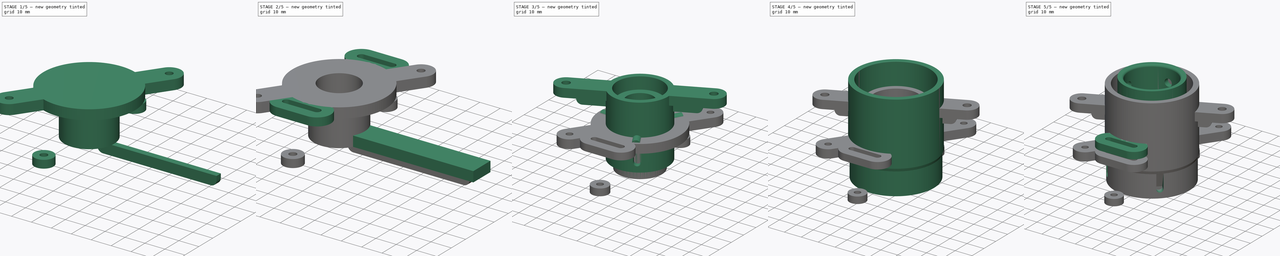
[diagram: build sequence overview — one tinted view per stage of 5, left to right]
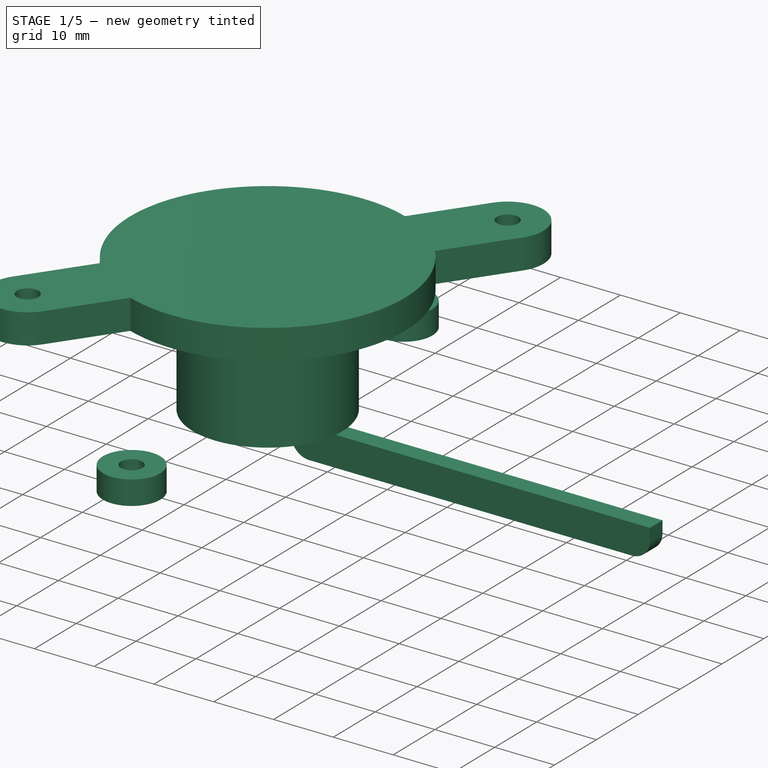
[diagram: stage 1 of 5 — iso view after this stage's code; geometry added in this stage tinted green]
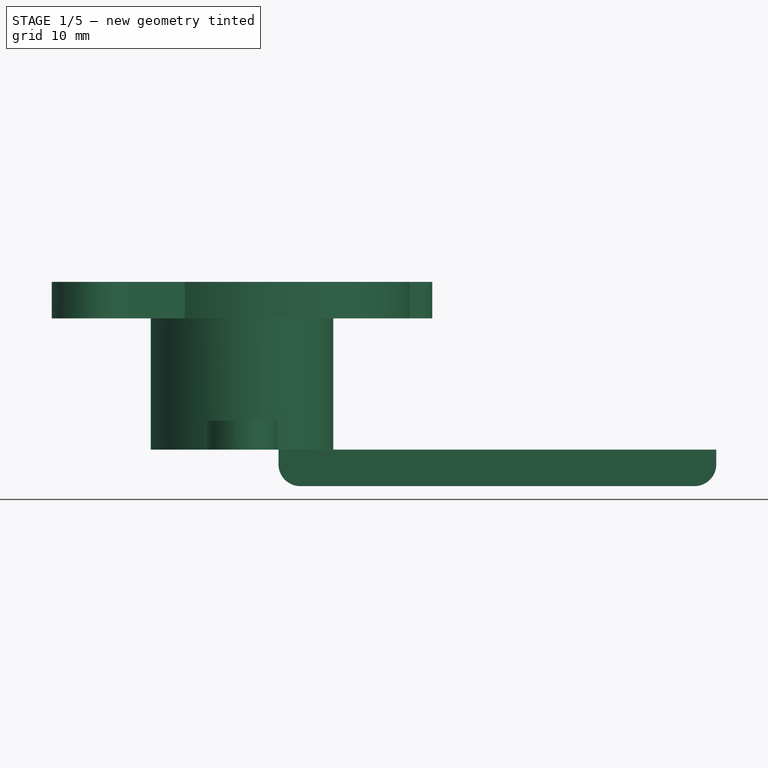
[diagram: stage 1 of 5 — front view after this stage's code; geometry added in this stage tinted green]
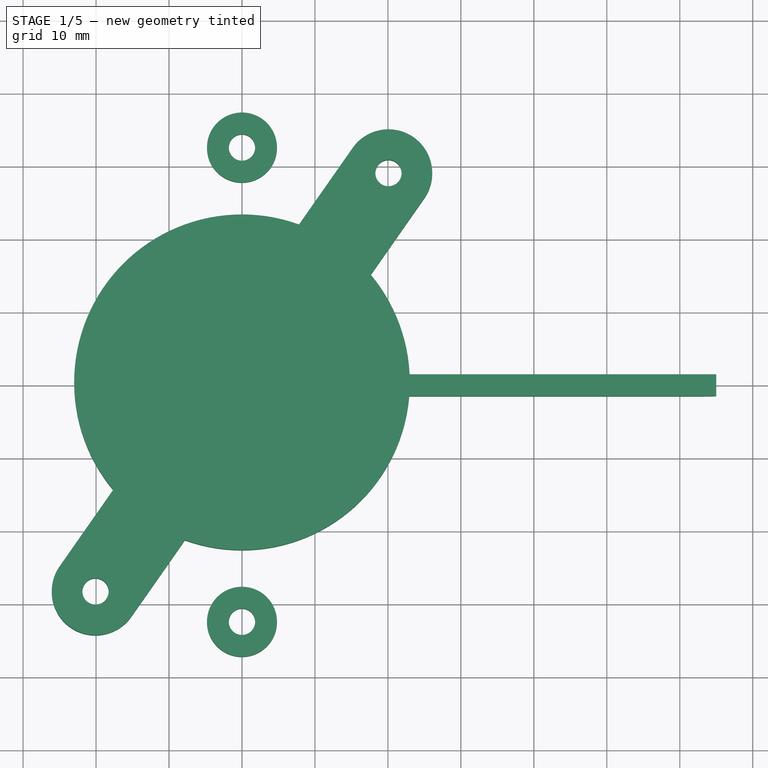
[diagram: stage 1 of 5 — top view after this stage's code; geometry added in this stage tinted green]
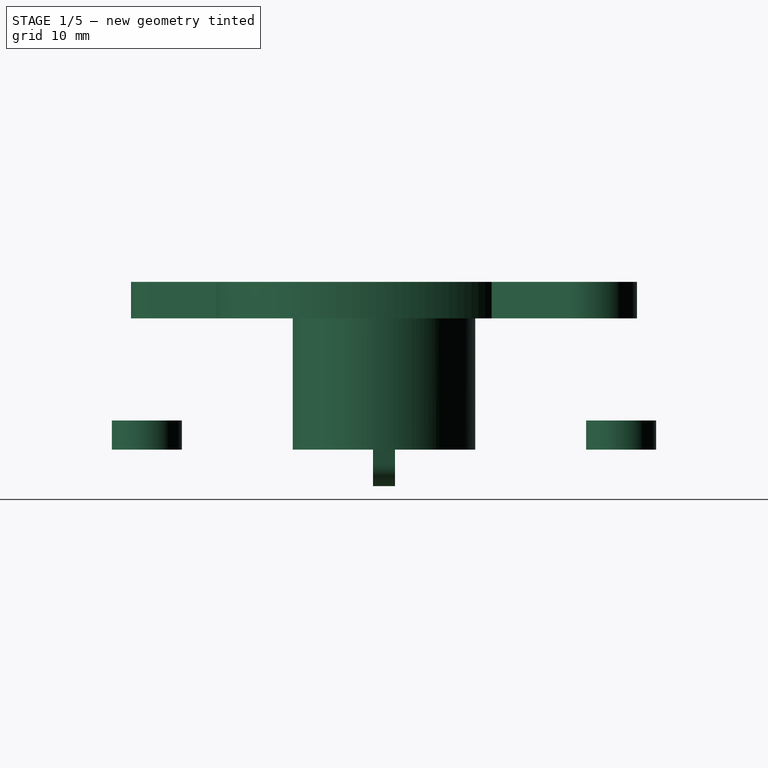
[diagram: stage 1 of 5 — right view after this stage's code; geometry added in this stage tinted green]
FCSTD DOCUMENT  (FreeCAD 0.19R)
Label: microscope_camera_adapter
License: All rights reserved
LicenseURL: http://en.wikipedia.org/wiki/All_rights_reserved
objects: Part::Cylinder×40, Part::MultiFuse×25, Part::FeaturePython×23, Part::Cut×16, Part::Box×9, App::Part×8, Part::Fillet×4, Part::Feature×3, PartDesign::Body×3, Sketcher::SketchObject×2, PartDesign::Revolution×2, Part::Cone×2, Spreadsheet::Sheet×1, Part::Refine×1, PartDesign::ShapeBinder×1, PartDesign::Pad×1, PartDesign::Mirrored×1, PartDesign::FeatureBase×1, Part::Compound×1
note: 115 computed .brp shape members not serialized (recipe doc carries the construction recipe); baked Part::Feature solids carry a one-line shape summary decoded from their .brp

FEATURE [App::Part] Part003  label="top bolted narrow lower part"
  Group = -> [Cut005]
  Origin = -> Origin004
  Placement = pos=(0,0,0) rot=(0,0,1;0.523599rad)
FEATURE [Part::Cylinder] Cylinder024  label="internal cylinder"
  Angle = 360
  AttacherType = Attacher::AttachEngine3D
  Height = 36
  Placement = pos=(0,0,5) rot=(0,0,1;0rad)
  Radius = 13
  expr: .Placement.Base.z = <<p>>.top_attachment_disk_h
  expr: Height = <<p>>.middle_part_h
  expr: Radius = <<p>>.outer_cylinder_r + <<p>>.plug_wall_gap
FEATURE [Part::Cylinder] Cylinder027  label="spring plate end"
  Angle = 360
  AttacherType = Attacher::AttachEngine3D
  Height = 5
  Radius = 6
  expr: Height = <<p>>.inserter_wall
  expr: Radius = <<p>>.spring_r + <<p>>.spring_border
FEATURE [Part::Cylinder] Cylinder029  label="spring plate end002"
  Angle = 360
  AttacherType = Attacher::AttachEngine3D
  Height = 5
  Radius = 6
  expr: Radius = <<p>>.spring_r + <<p>>.spring_border
  expr: Height = <<p>>.inserter_wall
FEATURE [Part::Cylinder] Cylinder031  label="zero holder external cylinder"
  Angle = 360
  AttacherType = Attacher::AttachEngine3D
  Height = 23
  Radius = 12.5
  expr: Height = <<p>>.zero_holder_h
  expr: Radius = <<internal cylinder>>.Radius - <<p>>.plug_wall_gap
FEATURE [App::Part] Part006  label="zero holder part"
  Group = -> [Cut011]
  Origin = -> Origin009
  Placement = pos=(0,0,37) rot=(0,0,1;0rad)
FEATURE [Part::Feature] Cut002004001  label="Pi_Zero_Case001"
  Placement = pos=(0,0,61) rot=(0,0,1;3.14159rad)
  shape: bbox 93.47 x 74.6 x 20.32 mm, 7631 faces, 7 solids (baked)
FEATURE [Part::Box] Box007  label="spring plate cube001"
  AttacherType = Attacher::AttachEngine3D
  Height = 5
  Length = 60
  Placement = pos=(5,-1.5,-5) rot=(0,0,1;0rad)
  Width = 3
  expr: .Placement.Base.z = -<<spring plate end>>.Height
  expr: Length = <<p>>.sprint_dist - 10mm
  expr: Height = <<spring plate end>>.Height
  expr: .Placement.Base.y = -Width / 2
FEATURE [Part::Fillet] Fillet003
  Base = -> Box007
  Edges = 2 edges r=3: [Edge4,Edge8]
FEATURE [App::Part] Part005  label="top middle part"
  Group = -> [Cut008]
  Origin = -> Origin008
  Placement = pos=(0,0,4) rot=(0,0,1;0.523599rad)
FEATURE [Part::Cylinder] Cylinder039  label="spring plate end004"
  Angle = 360
  AttacherType = Attacher::AttachEngine3D
  Height = 5
  Radius = 6
  expr: Height = <<p>>.inserter_wall
  expr: Radius = <<p>>.spring_r + <<p>>.spring_border
FEATURE [Part::FeaturePython] Array019  label="spring plate end array004"  # Draft array (typed FeaturePython)
  Angle = 360
  ArrayType = 0
  Axis = (0,0,1)
  Base = -> Cylinder039
  Center = (0,0,0)
  Count = 2
  ExpandArray = false
  Fuse = false
  IntervalAxis = (0,0,0)
  IntervalX = (70,0,0)
  IntervalY = (0,100,0)
  IntervalZ = (0,0,100)
  NumberCircles = 3
  NumberPolar = 5
  NumberX = 2
  NumberY = 1
  NumberZ = 1
  PlacementList = 2 placements: [(0,0,0),(70,0,0)]
  RadialDistance = 50
  ScaleList = (2) [(1,1,1),(1,1,1)]
  Symmetry = 1
  TangentialDistance = 25
  expr: .IntervalX.x = <<p>>.sprint_dist
FEATURE [Part::Cylinder] Cylinder040  label="spring plate end005"
  Angle = 360
  AttacherType = Attacher::AttachEngine3D
  Height = 5
  Radius = 1.8
  expr: Radius = <<p>>.bolt_hole_r
  expr: Height = <<p>>.inserter_wall
FEATURE [Part::FeaturePython] Array020  label="spring plate end array005"  # Draft array (typed FeaturePython)
  Angle = 360
  ArrayType = 0
  Axis = (0,0,1)
  Base = -> Cylinder040
  Center = (0,0,0)
  Count = 2
  ExpandArray = false
  Fuse = false
  IntervalAxis = (0,0,0)
  IntervalX = (70,0,0)
  IntervalY = (0,100,0)
  IntervalZ = (0,0,100)
  NumberCircles = 3
  NumberPolar = 5
  NumberX = 2
  NumberY = 1
  NumberZ = 1
  PlacementList = 2 placements: [(0,0,0),(70,0,0)]
  RadialDistance = 50
  ScaleList = (2) [(1,1,1),(1,1,1)]
  Symmetry = 1
  TangentialDistance = 25
  expr: .IntervalX.x = <<p>>.sprint_dist
FEATURE [Part::Box] Box008  label="Cube001"
  AttacherType = Attacher::AttachEngine3D
  Height = 5
  Length = 70
  Placement = pos=(0,-6,0) rot=(0,0,1;0rad)
  Width = 12
  expr: .Placement.Base.y = -Width / 2
  expr: Height = <<spring plate end004>>.Height
  expr: Width = <<spring plate end004>>.Radius * 2
  expr: Length = <<p>>.sprint_dist
FEATURE [Part::MultiFuse] Fusion021  label="spring plate fusion002"
  Shapes = -> [Array019,Box008]
FEATURE [Part::Cut] Cut002004002  label="spring attachment plate002"
  Base = -> Fusion021
  Placement = pos=(-35,0,18) rot=(0,0,1;0rad)
  Tool = -> Array020
  expr: .Placement.Base.x = -<<p>>.sprint_dist / 2
  expr: .Placement.Base.z = <<zero holder external cylinder001>>.Height - <<spring plate end004>>.Height
FEATURE [Part::Cylinder] Cylinder041  label="zero holder external cylinder001"
  Angle = 360
  AttacherType = Attacher::AttachEngine3D
  Height = 23
  Radius = 12.5
  expr: Radius = <<internal cylinder>>.Radius - <<p>>.plug_wall_gap
  expr: Height = <<p>>.zero_holder_h
FEATURE [Part::Cylinder] Cylinder042  label="zero holder internal cylinder001"
  Angle = 360
  AttacherType = Attacher::AttachEngine3D
  Height = 23
  Radius = 9.5
  expr: Height = <<p>>.zero_holder_h
  expr: Radius = <<zero holder external cylinder001>>.Radius - <<p>>.top_block_wall
FEATURE [Part::Cylinder] Cylinder045  label="zero holder top disk001"
  Angle = 360
  AttacherType = Attacher::AttachEngine3D
  Height = 5
  Placement = pos=(0,0,18) rot=(0,0,1;0rad)
  Radius = 23
  expr: Height = <<spring plate end004>>.Height
  expr: .Placement.Base.z = <<zero holder external cylinder001>>.Height - Height
FEATURE [Part::MultiFuse] Fusion022  label="zero holder fusion001"
  Placement = pos=(0,0,0) rot=(0,0,1;0.959931rad)
  Shapes = -> [Cylinder041,Cut002004002,Cylinder045]
FEATURE [Part::Cut] Cut002004003  label="zero holder cut001"
  Base = -> Fusion022
  Tool = -> Cylinder042
FEATURE [App::Part] Part007  label="zero holder part001"
  Group = -> [Cut002004003]
  Origin = -> Origin010
  Placement = pos=(0,0,37) rot=(0,0,1;0rad)
FEATURE [Part::Cylinder] Cylinder046  label="bolt hole"
  Angle = 360
  AttacherType = Attacher::AttachEngine3D
  Height = 10
  Radius = 1.8
FEATURE [Part::Cylinder] Cylinder048  label="bolt wall"
  Angle = 360
  AttacherType = Attacher::AttachEngine3D
  Height = 4
  Radius = 4.8
  expr: Radius = <<bolt hole>>.Radius + 3mm
FEATURE [Part::FeaturePython] Array021  label="bolt wall array"  # Draft array (typed FeaturePython)
  Angle = 360
  ArrayType = 0
  Axis = (0,0,1)
  Base = -> Cylinder048
  Center = (0,0,0)
  Count = 2
  ExpandArray = false
  Fuse = false
  IntervalAxis = (0,0,0)
  IntervalX = (100,0,0)
  IntervalY = (0,65,0)
  IntervalZ = (0,0,100)
  NumberCircles = 3
  NumberPolar = 5
  NumberX = 1
  NumberY = 2
  NumberZ = 1
  Placement = pos=(0,-32.5,0) rot=(0,0,1;0rad)
  PlacementList = 2 placements: [(0,0,0),(0,65,0)]
  RadialDistance = 50
  ScaleList = (2) [(1,1,1),(1,1,1)]
  Symmetry = 1
  TangentialDistance = 25
  expr: .Placement.Base.y = -.IntervalY.y / 2
FEATURE [Part::MultiFuse] Fusion023  label="bolt wall fusion"
  Shapes = -> [Array021]
FEATURE [Part::FeaturePython] Array022  label="bolt hole array"  # Draft array (typed FeaturePython)
  Angle = 360
  ArrayType = 0
  Axis = (0,0,1)
  Base = -> Cylinder046
  Center = (0,0,0)
  Count = 2
  ExpandArray = false
  Fuse = false
  IntervalAxis = (0,0,0)
  IntervalX = (100,0,0)
  IntervalY = (0,65,0)
  IntervalZ = (0,0,100)
  NumberCircles = 3
  NumberPolar = 5
  NumberX = 1
  NumberY = 2
  NumberZ = 1
  Placement = pos=(0,-32.5,0) rot=(0,0,1;0rad)
  PlacementList = 2 placements: [(0,0,0),(0,65,0)]
  RadialDistance = 50
  ScaleList = (2) [(1,1,1),(1,1,1)]
  Symmetry = 1
  TangentialDistance = 25
  expr: .Placement.Base.y = -.IntervalY.y / 2
FEATURE [Part::MultiFuse] Fusion025  label="extract fusion"
  Shapes = -> [Array022]
FEATURE [Part::Cut] Cut002004004  label="microscope attachment cut"
  Base = -> Fusion023
  Tool = -> Fusion025
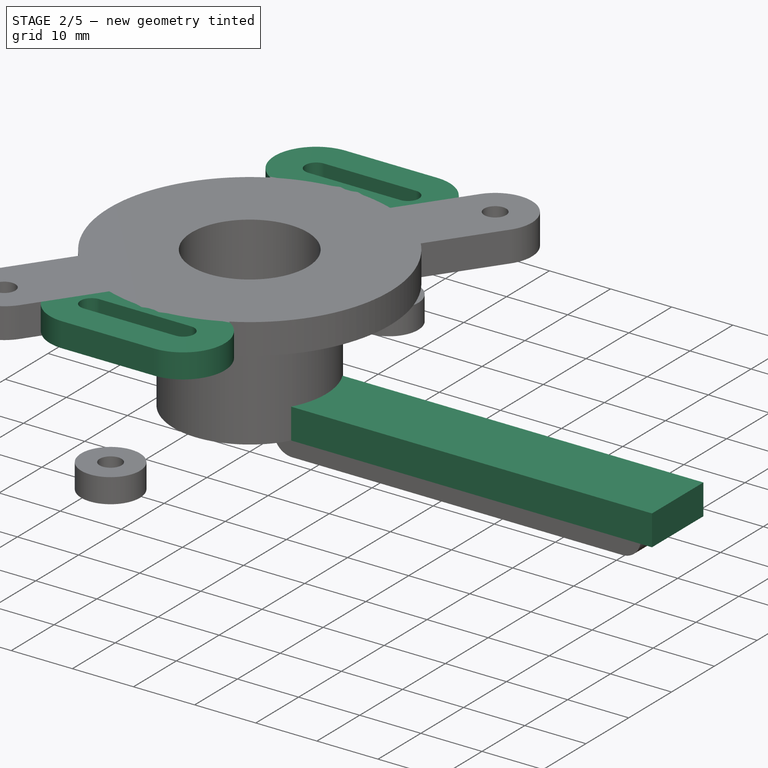
[diagram: stage 2 of 5 — iso view after this stage's code; geometry added in this stage tinted green]
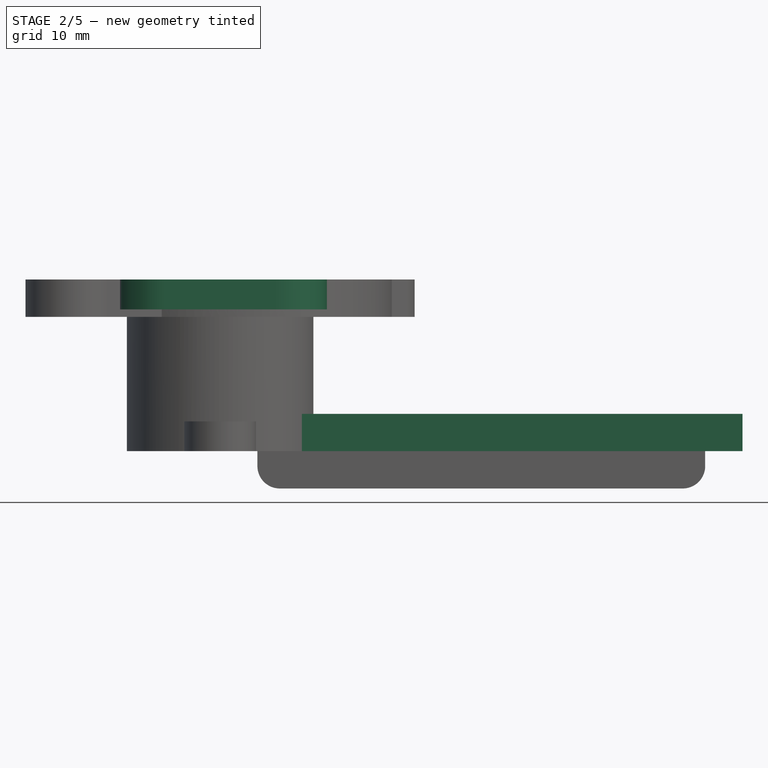
[diagram: stage 2 of 5 — front view after this stage's code; geometry added in this stage tinted green]
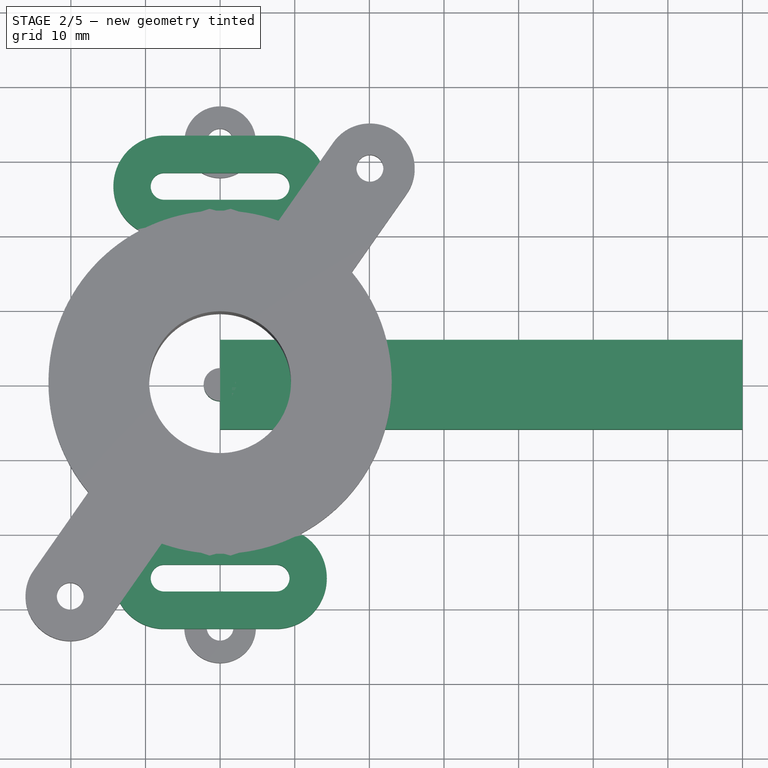
[diagram: stage 2 of 5 — top view after this stage's code; geometry added in this stage tinted green]
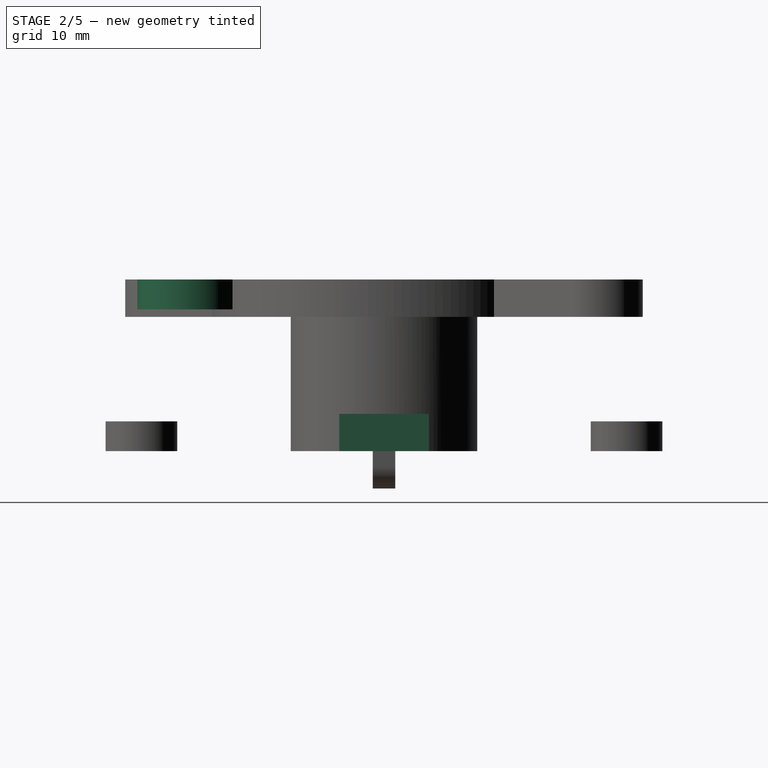
[diagram: stage 2 of 5 — right view after this stage's code; geometry added in this stage tinted green]
FEATURE [Part::Cylinder] Cylinder006  label="internal central hole"
  Angle = 360
  AttacherType = Attacher::AttachEngine3D
  Height = 30
  Radius = 17.5
  expr: Radius = <<top block wall sketch>>.Constraints.external_top_part_r + <<p>>.plug_wall_gap
  expr: Height = <<p>>.plug_h
FEATURE [Part::Cylinder] Cylinder007  label="external cylinder"
  Angle = 360
  AttacherType = Attacher::AttachEngine3D
  Height = 30
  Radius = 22.5
  expr: Radius = <<internal central hole>>.Radius + <<p>>.plug_wall
  expr: Height = <<p>>.plug_h
FEATURE [Part::Cylinder] Cylinder028  label="spring plate end001"
  Angle = 360
  AttacherType = Attacher::AttachEngine3D
  Height = 5
  Radius = 2.2
  expr: Radius = <<p>>.insert_hole_r
  expr: Height = <<p>>.inserter_wall
FEATURE [Part::Box] Box003  label="spring plate cube"
  AttacherType = Attacher::AttachEngine3D
  Height = 5
  Length = 70
  Placement = pos=(0,-6,0) rot=(0,0,1;0rad)
  Width = 12
  expr: .Placement.Base.y = -Width / 2
  expr: Height = <<spring plate end>>.Height
  expr: Width = <<spring plate end>>.Radius * 2
  expr: Length = <<p>>.sprint_dist
FEATURE [Part::FeaturePython] Array014  label="spring plate end array002"  # Draft array (typed FeaturePython)
  Angle = 360
  ArrayType = 0
  Axis = (0,0,1)
  Base = -> Cylinder029
  Center = (0,0,0)
  Count = 2
  ExpandArray = false
  Fuse = false
  IntervalAxis = (0,0,0)
  IntervalX = (70,0,0)
  IntervalY = (0,100,0)
  IntervalZ = (0,0,100)
  NumberCircles = 3
  NumberPolar = 5
  NumberX = 2
  NumberY = 1
  NumberZ = 1
  PlacementList = 2 placements: [(0,0,0),(70,0,0)]
  RadialDistance = 50
  ScaleList = (2) [(1,1,1),(1,1,1)]
  Symmetry = 1
  TangentialDistance = 25
  expr: .IntervalX.x = <<p>>.sprint_dist
FEATURE [Part::Cylinder] Cylinder030  label="spring plate end003"
  Angle = 360
  AttacherType = Attacher::AttachEngine3D
  Height = 5
  Radius = 1.8
  expr: Height = <<p>>.inserter_wall
  expr: Radius = <<p>>.bolt_hole_r
FEATURE [Part::FeaturePython] Array015  label="spring plate end array003"  # Draft array (typed FeaturePython)
  Angle = 360
  ArrayType = 0
  Axis = (0,0,1)
  Base = -> Cylinder030
  Center = (0,0,0)
  Count = 2
  ExpandArray = false
  Fuse = false
  IntervalAxis = (0,0,0)
  IntervalX = (70,0,0)
  IntervalY = (0,100,0)
  IntervalZ = (0,0,100)
  NumberCircles = 3
  NumberPolar = 5
  NumberX = 2
  NumberY = 1
  NumberZ = 1
  PlacementList = 2 placements: [(0,0,0),(70,0,0)]
  RadialDistance = 50
  ScaleList = (2) [(1,1,1),(1,1,1)]
  Symmetry = 1
  TangentialDistance = 25
  expr: .IntervalX.x = <<p>>.sprint_dist
FEATURE [Part::Box] Box004  label="Cube"
  AttacherType = Attacher::AttachEngine3D
  Height = 5
  Length = 70
  Placement = pos=(0,-6,0) rot=(0,0,1;0rad)
  Width = 12
  expr: Length = <<p>>.sprint_dist
  expr: Width = <<spring plate end002>>.Radius * 2
  expr: Height = <<spring plate end002>>.Height
  expr: .Placement.Base.y = -Width / 2
FEATURE [Part::MultiFuse] Fusion017  label="spring plate fusion001"
  Shapes = -> [Array014,Box004]
FEATURE [Part::Cut] Cut010  label="spring attachment plate001"
  Base = -> Fusion017
  Placement = pos=(-35,0,18) rot=(0,0,1;0rad)
  Tool = -> Array015
  expr: .Placement.Base.z = <<zero holder external cylinder>>.Height - <<spring plate end002>>.Height
  expr: .Placement.Base.x = -<<p>>.sprint_dist / 2
FEATURE [Part::Cylinder] Cylinder032  label="zero holder internal cylinder"
  Angle = 360
  AttacherType = Attacher::AttachEngine3D
  Height = 23
  Radius = 9.5
  expr: Radius = <<zero holder external cylinder>>.Radius - <<p>>.top_block_wall
  expr: Height = <<p>>.zero_holder_h
FEATURE [Part::Box] Box005  label="camera hole central cube002"
  AttacherType = Attacher::AttachEngine3D
  Height = 10
  Length = 15
  Placement = pos=(0,-1.8,0) rot=(0,0,1;0rad)
  Width = 3.6
  expr: .Placement.Base.y = -<<p>>.bolt_hole_r
  expr: Width = <<p>>.bolt_hole_r * 2
  expr: Length = <<p>>.bolt_hole_size
FEATURE [Part::Cylinder] Cylinder033  label="camera attachment hole001"
  Angle = 360
  AttacherType = Attacher::AttachEngine3D
  Height = 10
  Radius = 1.8
  expr: Radius = <<p>>.bolt_hole_r
FEATURE [Part::FeaturePython] Array016  label="camera hole array001"  # Draft array (typed FeaturePython)
  Angle = 360
  ArrayType = 0
  Axis = (0,0,1)
  Base = -> Cylinder033
  Center = (0,0,0)
  Count = 2
  ExpandArray = false
  Fuse = false
  IntervalAxis = (0,0,0)
  IntervalX = (15,0,0)
  IntervalY = (0,100,0)
  IntervalZ = (0,0,100)
  NumberCircles = 3
  NumberPolar = 5
  NumberX = 2
  NumberY = 1
  NumberZ = 1
  PlacementList = 2 placements: [(0,0,0),(15,0,0)]
  RadialDistance = 50
  ScaleList = (2) [(1,1,1),(1,1,1)]
  Symmetry = 1
  TangentialDistance = 25
  expr: .IntervalX.x = <<p>>.bolt_hole_size
FEATURE [Part::MultiFuse] Fusion019  label="camera attachment hole fusion001"
  Shapes = -> [Array016,Box005]
FEATURE [Part::Box] Box006  label="camera attachment cube001"
  AttacherType = Attacher::AttachEngine3D
  Height = 4
  Length = 15
  Placement = pos=(0,-6.8,0) rot=(0,0,1;0rad)
  Width = 13.6
  expr: Height = <<p>>.camera_attachment_h
  expr: Length = <<p>>.bolt_hole_size
  expr: Width = (<<p>>.bolt_hole_r + +<<p>>.camera_attachment_wall) * 2
  expr: .Placement.Base.y = -Width / 2
FEATURE [Part::Cylinder] Cylinder034  label="camera attachment001"
  Angle = 360
  AttacherType = Attacher::AttachEngine3D
  Height = 4
  Radius = 6.8
  expr: Height = <<p>>.camera_attachment_h
  expr: Radius = <<p>>.bolt_hole_r + <<p>>.camera_attachment_wall
FEATURE [Part::FeaturePython] Array018  label="camera attachment array001"  # Draft array (typed FeaturePython)
  Angle = 360
  ArrayType = 0
  Axis = (0,0,1)
  Base = -> Cylinder034
  Center = (0,0,0)
  Count = 2
  ExpandArray = false
  Fuse = false
  IntervalAxis = (0,0,0)
  IntervalX = (15,0,0)
  IntervalY = (0,100,0)
  IntervalZ = (0,0,100)
  NumberCircles = 3
  NumberPolar = 5
  NumberX = 2
  NumberY = 1
  NumberZ = 1
  PlacementList = 2 placements: [(0,0,0),(15,0,0)]
  RadialDistance = 50
  ScaleList = (2) [(1,1,1),(1,1,1)]
  Symmetry = 1
  TangentialDistance = 25
  expr: .IntervalX.x = <<p>>.bolt_hole_size
FEATURE [Part::MultiFuse] Fusion020  label="camera attachment fusion002"
  Shapes = -> [Array018,Box006]
FEATURE [Part::Cut] Cut012  label="camera attachment cut001"
  Base = -> Fusion020
  Tool = -> Fusion019
FEATURE [Part::FeaturePython] Array017  label="camera attachment hole array001"  # Draft array (typed FeaturePython)
  Angle = 360
  ArrayType = 0
  Axis = (0,0,1)
  Base = -> Cut012
  Center = (0,0,0)
  Count = 2
  ExpandArray = false
  Fuse = false
  IntervalAxis = (0,0,0)
  IntervalX = (100,0,0)
  IntervalY = (0,52.5,0)
  IntervalZ = (0,0,100)
  NumberCircles = 3
  NumberPolar = 5
  NumberX = 1
  NumberY = 2
  NumberZ = 1
  Placement = pos=(-7.5,-26.25,19) rot=(0,0,1;0rad)
  PlacementList = 2 placements: [(0,0,0),(0,52.5,0)]
  RadialDistance = 50
  ScaleList = (2) [(1,1,1),(1,1,1)]
  Symmetry = 1
  TangentialDistance = 25
  expr: .Placement.Base.z = <<zero holder external cylinder>>.Height - <<p>>.camera_attachment_h
  expr: .Placement.Base.y = -.IntervalY.y / 2
  expr: .Placement.Base.x = -<<p>>.bolt_hole_size / 2
  expr: .IntervalY.y = (<<external cylinder>>.Radius + <<p>>.plug_wall) * 2 - <<p>>.camera_attachment_wall / 2
FEATURE [Part::Compound] Compound
  Links = -> [Array017]
  Placement = pos=(0,0,0) rot=(0,0,-1;0.959931rad)
FEATURE [Part::Cylinder] Cylinder035  label="zero holder top disk"
  Angle = 360
  AttacherType = Attacher::AttachEngine3D
  Height = 5
  Placement = pos=(0,0,18) rot=(0,0,1;0rad)
  Radius = 23
  expr: .Placement.Base.z = <<zero holder external cylinder>>.Height - Height
  expr: Height = <<spring plate end002>>.Height
FEATURE [Part::MultiFuse] Fusion018  label="zero holder fusion"
  Placement = pos=(0,0,0) rot=(0,0,1;0.959931rad)
  Shapes = -> [Cylinder031,Cut010,Compound,Cylinder035]
FEATURE [Part::Cut] Cut011  label="zero holder cut"
  Base = -> Fusion018
  Tool = -> Cylinder032
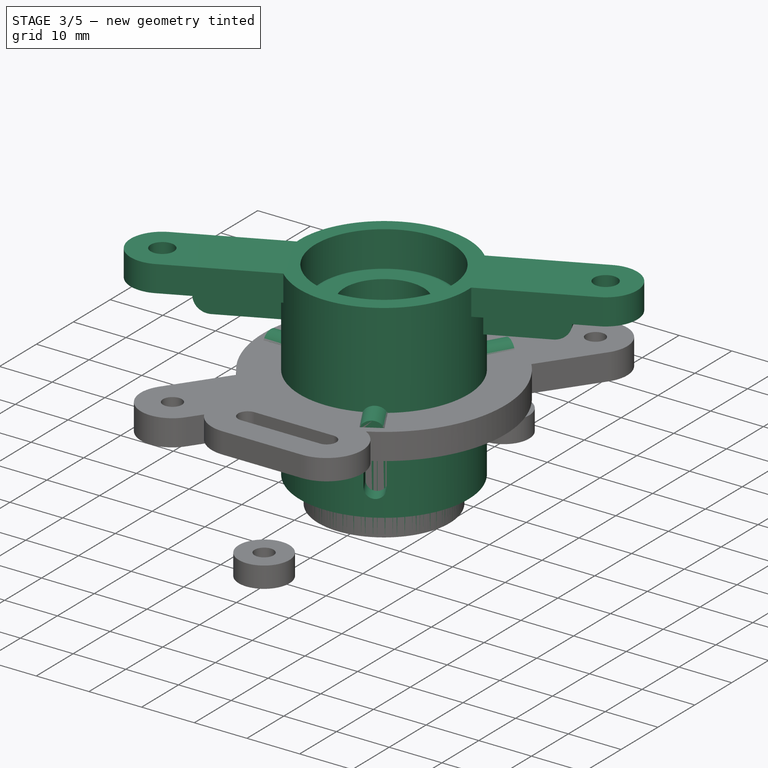
[diagram: stage 3 of 5 — iso view after this stage's code; geometry added in this stage tinted green]
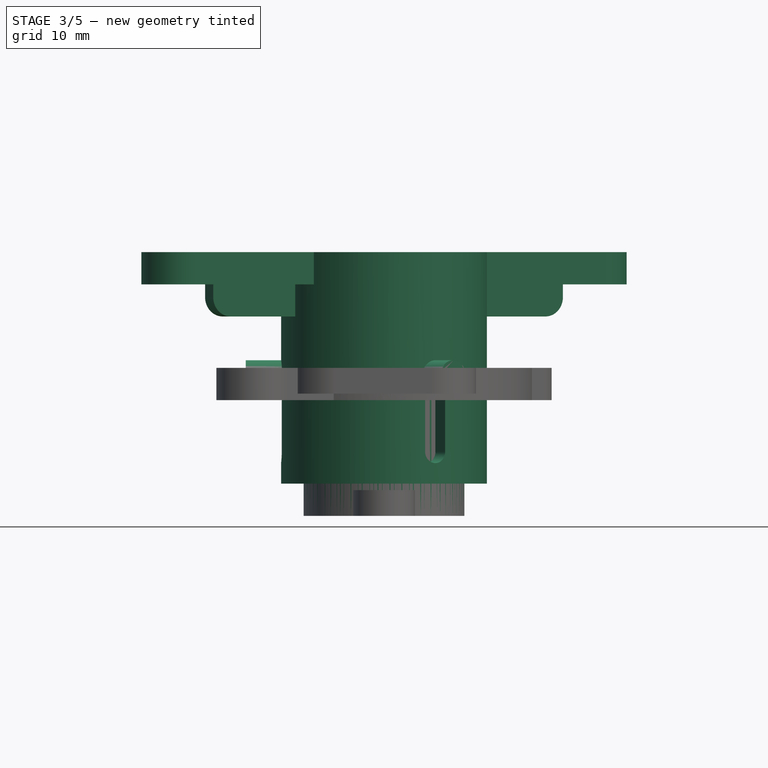
[diagram: stage 3 of 5 — front view after this stage's code; geometry added in this stage tinted green]
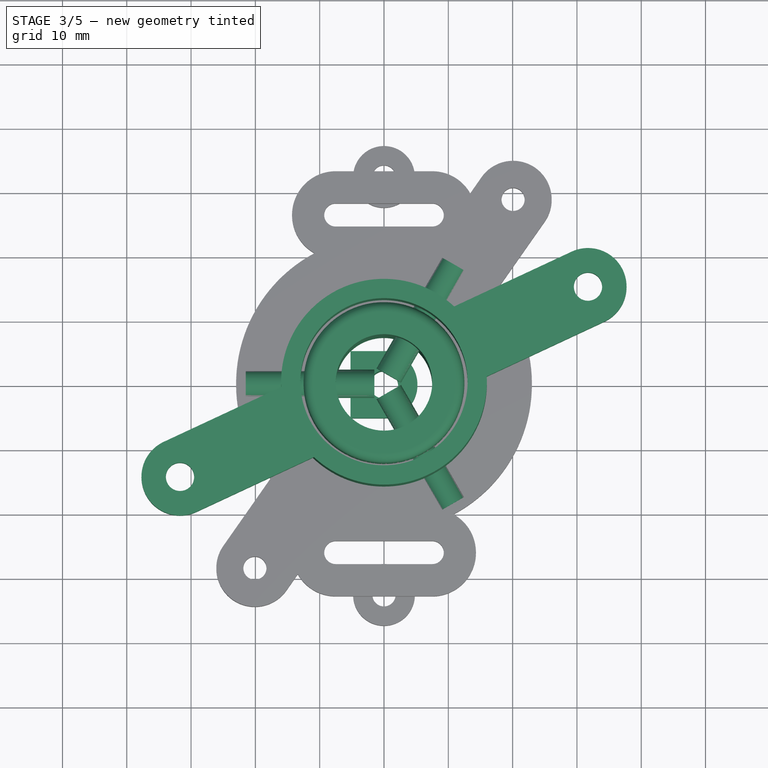
[diagram: stage 3 of 5 — top view after this stage's code; geometry added in this stage tinted green]
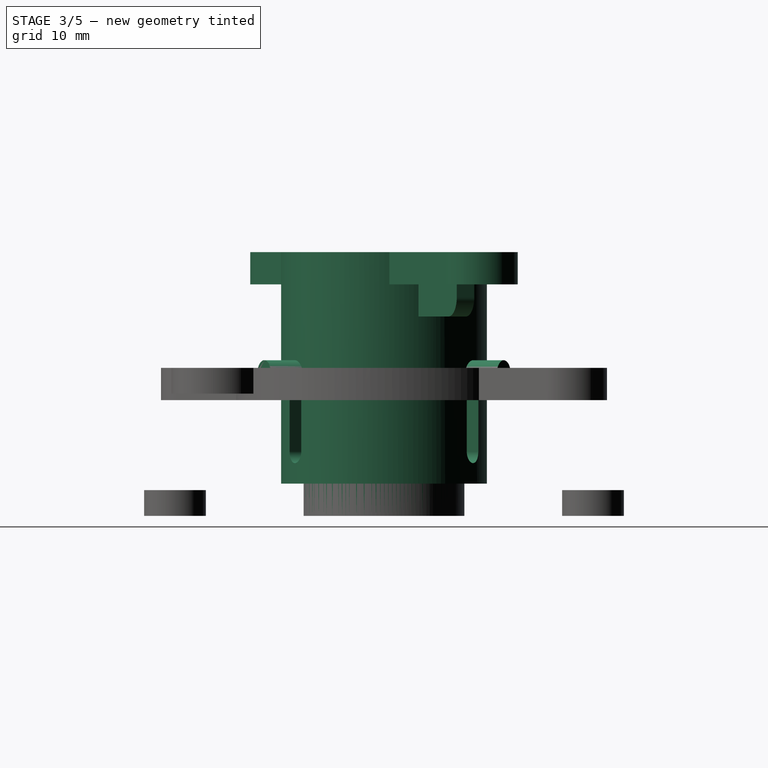
[diagram: stage 3 of 5 — right view after this stage's code; geometry added in this stage tinted green]
FEATURE [App::Part] Part002  label="top bolted part"
  Group = -> [Cut004]
  Origin = -> Origin003
FEATURE [Part::Feature] Compound001  label="RPI compound001"
  Placement = pos=(0,0,61) rot=(0,0,1;3.14159rad)
  shape: bbox 109.5 x 74.6 x 20.32 mm, 7782 faces (baked)
FEATURE [Part::Cylinder] Cylinder016  label="outer cylinder"
  Angle = 360
  AttacherType = Attacher::AttachEngine3D
  Height = 35
  Radius = 12.5
  expr: Radius = <<p>>.outer_cylinder_r
  expr: Height = <<p>>.top_lower_part_h + <<p>>.top_attachment_disk_h
FEATURE [Part::Cylinder] Cylinder020  label="inner cylinder"
  Angle = 360
  AttacherType = Attacher::AttachEngine3D
  Height = 52
  Radius = 7.5
  expr: Height = <<p>>.top_block_h + <<p>>.top_attachment_disk_h
  expr: Radius = <<p>>.outer_cylinder_r - <<p>>.inserter_wall
FEATURE [Sketcher::SketchObject] Sketch001
  FullyConstrained = true
  MapMode = 5
  Placement = pos=(0,0,0) rot=(0.57735,0.57735,0.57735;2.0944rad)
  Support = -> [YZ_Plane006]
  expr: Constraints[8] = <<p>>.insert_hole_r + <<p>>.top_block_wall
  sketch-geometry (4):
    g0: LineSegment StartX=0 StartY=0 StartZ=0 EndX=5.2 EndY=10 EndZ=0
    g1: LineSegment StartX=5.2 StartY=10 StartZ=0 EndX=5.2 EndY=16 EndZ=0
    g2: LineSegment StartX=5.2 StartY=16 StartZ=0 EndX=0 EndY=16 EndZ=0
    g3: LineSegment StartX=0 StartY=16 StartZ=0 EndX=0 EndY=0 EndZ=0
  constraints (11):
    c: Coincident(g0,g-1)
    c: Coincident(g1,g0)
    c: Vertical(g1)
    c: Coincident(g2,g1)
    c: PointOnObject(g2,g-2)
    c: Horizontal(g2)
    c: Coincident(g3,g2)
    c: Coincident(g3,g0)
    c: DistanceX(g2,g2) = 5.2
    c: DistanceY(g1,g1) = 6
    c: DistanceY(g0,g0) = 10
FEATURE [PartDesign::Revolution] Revolution001
  Angle = 90
  Axis = (-2e-16,3e-16,1)
  Base = (0,0,0)
  Placement = pos=(0,0,0) rot=(0.57735,0.57735,0.57735;2.0944rad)
  Profile = -> Sketch001
  ReferenceAxis = -> Sketch001 [V_Axis]
  Reversed = true
FEATURE [PartDesign::Pad] Pad
  BaseFeature = -> Revolution001
  Direction = (1,1,1)
  Length = 5.2
  Length2 = 100
  Placement = pos=(0,0,0) rot=(0.57735,0.57735,0.57735;2.0944rad)
  Profile = -> Sketch001
  Reversed = true
  Type = 0
  expr: Length = <<p>>.insert_hole_r + <<p>>.top_block_wall
FEATURE [PartDesign::Mirrored] Mirrored
  BaseFeature = -> Pad
  MirrorPlane = -> Sketch001 [V_Axis]
  Originals = -> [Revolution001,Pad]
  Placement = pos=(0,0,0) rot=(0.57735,0.57735,0.57735;2.0944rad)
FEATURE [PartDesign::Body] Body001  label="ear body"
  Group = -> [Sketch001,Revolution001,Pad,Mirrored]
  Origin = -> Origin006
  Tip = -> Mirrored
FEATURE [Part::Cylinder] Cylinder022  label="ear inserter hole"
  Angle = 360
  AttacherType = Attacher::AttachEngine3D
  Height = 20
  Radius = 2.2
  expr: Radius = <<p>>.insert_hole_r
FEATURE [Part::Cut] Cut006  label="ear with hole cut"
  Base = -> Body001
  Tool = -> Cylinder022
FEATURE [App::Part] Part004  label="ear"
  Group = -> [Body001,Cylinder022,Cut006]
  Origin = -> Origin005
FEATURE [PartDesign::FeatureBase] Clone
  BaseFeature = -> Cut006
FEATURE [Part::Cylinder] Cylinder023  label="insert hole001"
  Angle = 360
  AttacherType = Attacher::AttachEngine3D
  Height = 20
  Placement = pos=(21.5,0,0) rot=(0,-1,0;1.5708rad)
  Radius = 2.2
  expr: .Placement.Base.x = <<p>>.top_attachment_hole_r + Height / 2
  expr: Radius = <<p>>.insert_hole_r
FEATURE [Part::FeaturePython] Array009  label="insert hole polar array001"  # Draft array (typed FeaturePython)
  Angle = 360
  ArrayType = 1
  Axis = (0,0,1)
  Base = -> Cylinder023
  Center = (0,0,0)
  Count = 3
  ExpandArray = false
  Fuse = false
  IntervalAxis = (0,0,0)
  IntervalX = (50,0,0)
  IntervalY = (0,50,0)
  IntervalZ = (0,0,50)
  NumberCircles = 3
  NumberPolar = 3
  NumberX = 2
  NumberY = 2
  NumberZ = 1
  Placement = pos=(0,0,22) rot=(0,0,1;1.0472rad)
  PlacementList = 3 placements: [(21.5,0,0),(-10.75,18.6195,0),(-10.75,-18.6195,0)]
  RadialDistance = 50
  ScaleList = (3) [(1,1,1),(1,1,1),(1,1,1)]
  Symmetry = 1
  TangentialDistance = 25
  expr: .Placement.Base.z = <<p>>.top_attachment_disk_h + <<p>>.top_lower_part_h - <<p>>.inserter_hole_pos
FEATURE [Part::Cut] Cut007  label="top lower pipe"
  Base = -> Cylinder016
  Tool = -> Cylinder020
FEATURE [Part::Fillet] Fillet002  label="top lower pipe fillet"
  Base = -> Cut007
  Edges = 1 edges r=1.5: [Edge1]
FEATURE [Part::Cylinder] Cylinder025  label="external cylinder001"
  Angle = 360
  AttacherType = Attacher::AttachEngine3D
  Height = 36
  Placement = pos=(0,0,5) rot=(0,0,1;0rad)
  Radius = 16
  expr: .Placement.Base.z = <<p>>.top_attachment_disk_h
  expr: Height = <<p>>.middle_part_h
  expr: Radius = <<internal cylinder>>.Radius + <<p>>.top_block_wall
FEATURE [Part::Cylinder] Cylinder026  label="hole side001"
  Angle = 360
  AttacherType = Attacher::AttachEngine3D
  Height = 10
  Radius = 1.8
  expr: Radius = <<p>>.bolt_hole_r
FEATURE [Part::FeaturePython] Array010  label="hole side array001"  # Draft array (typed FeaturePython)
  Angle = 360
  ArrayType = 0
  Axis = (0,0,1)
  Base = -> Cylinder026
  Center = (0,0,0)
  Count = 2
  ExpandArray = false
  Fuse = false
  IntervalAxis = (0,0,0)
  IntervalX = (10,0,0)
  IntervalY = (0,100,0)
  IntervalZ = (0,0,100)
  NumberCircles = 3
  NumberPolar = 5
  NumberX = 2
  NumberY = 1
  NumberZ = 1
  PlacementList = 2 placements: [(0,0,0),(10,0,0)]
  RadialDistance = 50
  ScaleList = (2) [(1,1,1),(1,1,1)]
  Symmetry = 1
  TangentialDistance = 25
  expr: .IntervalX.x = <<p>>.middle_bolt_hole_size
FEATURE [Part::Box] Box002  label="camera hole central cube001"
  AttacherType = Attacher::AttachEngine3D
  Height = 10
  Length = 10
  Placement = pos=(0,-1.8,0) rot=(0,0,1;0rad)
  Width = 3.6
  expr: .Placement.Base.y = -<<p>>.bolt_hole_r
  expr: Width = <<p>>.bolt_hole_r * 2
  expr: Length = <<p>>.middle_bolt_hole_size
FEATURE [Part::MultiFuse] Fusion013  label="bolt hole fusion003"
  Placement = pos=(-6,0,0) rot=(0,-1,0;1.5708rad)
  Shapes = -> [Array010,Box002]
  expr: .Placement.Base.x = -<<external cylinder001>>.Radius + <<hole side001>>.Height
FEATURE [Part::FeaturePython] Array011  label="bolt hole polar array001"  # Draft array (typed FeaturePython)
  Angle = 360
  ArrayType = 1
  Axis = (0,0,1)
  Base = -> Fusion013
  Center = (0,0,0)
  Count = 3
  ExpandArray = false
  Fuse = false
  IntervalAxis = (0,0,0)
  IntervalX = (50,0,0)
  IntervalY = (0,50,0)
  IntervalZ = (0,0,50)
  NumberCircles = 3
  NumberPolar = 3
  NumberX = 2
  NumberY = 2
  NumberZ = 1
  Placement = pos=(0,0,10) rot=(0,0,1;0rad)
  PlacementList = 3 placements: [(-6,0,0),(3,-5.19615,0),(3,5.19615,0)]
  RadialDistance = 50
  ScaleList = (3) [(1,1,1),(1,1,1),(1,1,1)]
  Symmetry = 1
  TangentialDistance = 25
  expr: .Placement.Base.z = <<external cylinder001>>.Placement.Base.z + 5mm
FEATURE [Part::MultiFuse] Fusion014  label="middle hole fusion"
  Shapes = -> [Array011,Cylinder024]
FEATURE [Part::FeaturePython] Array012  label="spring plate end array"  # Draft array (typed FeaturePython)
  Angle = 360
  ArrayType = 0
  Axis = (0,0,1)
  Base = -> Cylinder027
  Center = (0,0,0)
  Count = 2
  ExpandArray = false
  Fuse = false
  IntervalAxis = (0,0,0)
  IntervalX = (70,0,0)
  IntervalY = (0,100,0)
  IntervalZ = (0,0,100)
  NumberCircles = 3
  NumberPolar = 5
  NumberX = 2
  NumberY = 1
  NumberZ = 1
  PlacementList = 2 placements: [(0,0,0),(70,0,0)]
  RadialDistance = 50
  ScaleList = (2) [(1,1,1),(1,1,1)]
  Symmetry = 1
  TangentialDistance = 25
  expr: .IntervalX.x = <<p>>.sprint_dist
FEATURE [Part::FeaturePython] Array013  label="spring plate end array001"  # Draft array (typed FeaturePython)
  Angle = 360
  ArrayType = 0
  Axis = (0,0,1)
  Base = -> Cylinder028
  Center = (0,0,0)
  Count = 2
  ExpandArray = false
  Fuse = false
  IntervalAxis = (0,0,0)
  IntervalX = (70,0,0)
  IntervalY = (0,100,0)
  IntervalZ = (0,0,100)
  NumberCircles = 3
  NumberPolar = 5
  NumberX = 2
  NumberY = 1
  NumberZ = 1
  PlacementList = 2 placements: [(0,0,0),(70,0,0)]
  RadialDistance = 50
  ScaleList = (2) [(1,1,1),(1,1,1)]
  Symmetry = 1
  TangentialDistance = 25
  expr: .IntervalX.x = <<p>>.sprint_dist
FEATURE [Part::MultiFuse] Fusion015  label="spring plate fusion"
  Shapes = -> [Array012,Box003,Fillet003]
FEATURE [Part::Cut] Cut009  label="spring attachment plate"
  Base = -> Fusion015
  Placement = pos=(-35,0,36) rot=(0,0,1;0rad)
  Tool = -> Array013
  expr: .Placement.Base.x = -<<p>>.sprint_dist / 2
  expr: .Placement.Base.z = <<p>>.middle_part_h
FEATURE [Part::MultiFuse] Fusion016  label="middle body fusion"
  Placement = pos=(0,0,0) rot=(0,0,1;0.436332rad)
  Shapes = -> [Cylinder025,Cut009]
FEATURE [Part::Cut] Cut008  label="middle cut"
  Base = -> Fusion016
  Tool = -> Fusion014
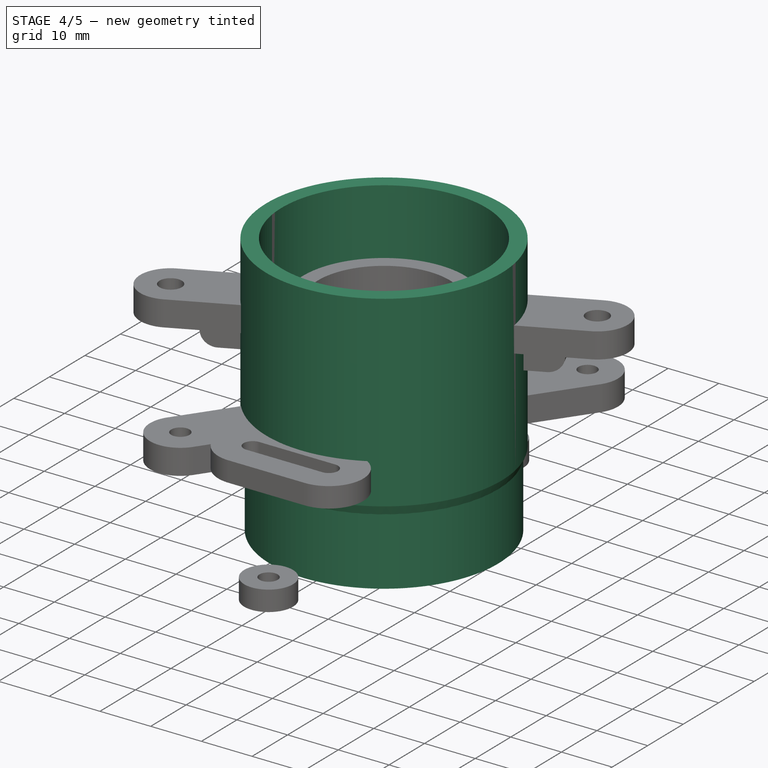
[diagram: stage 4 of 5 — iso view after this stage's code; geometry added in this stage tinted green]
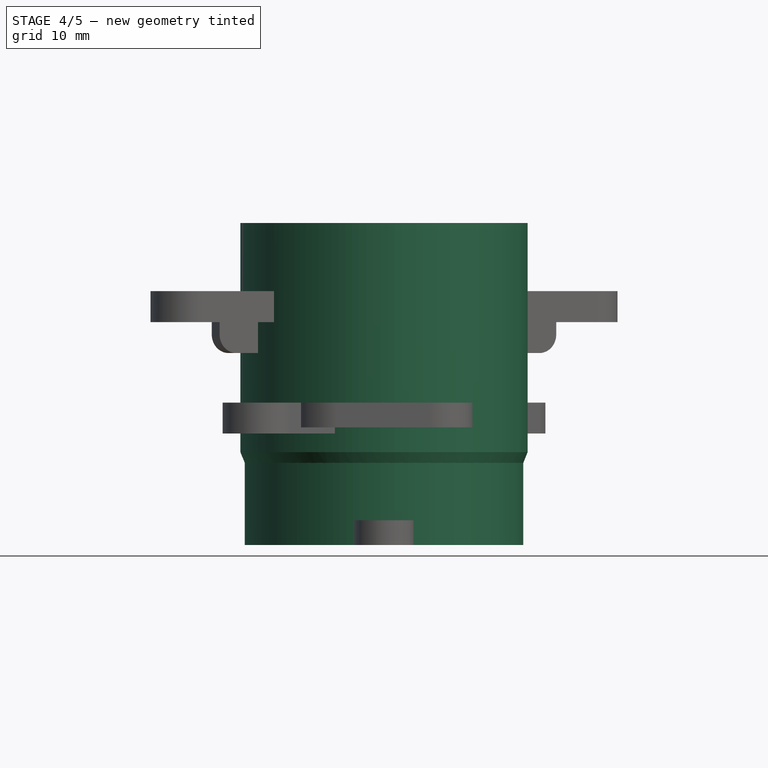
[diagram: stage 4 of 5 — front view after this stage's code; geometry added in this stage tinted green]
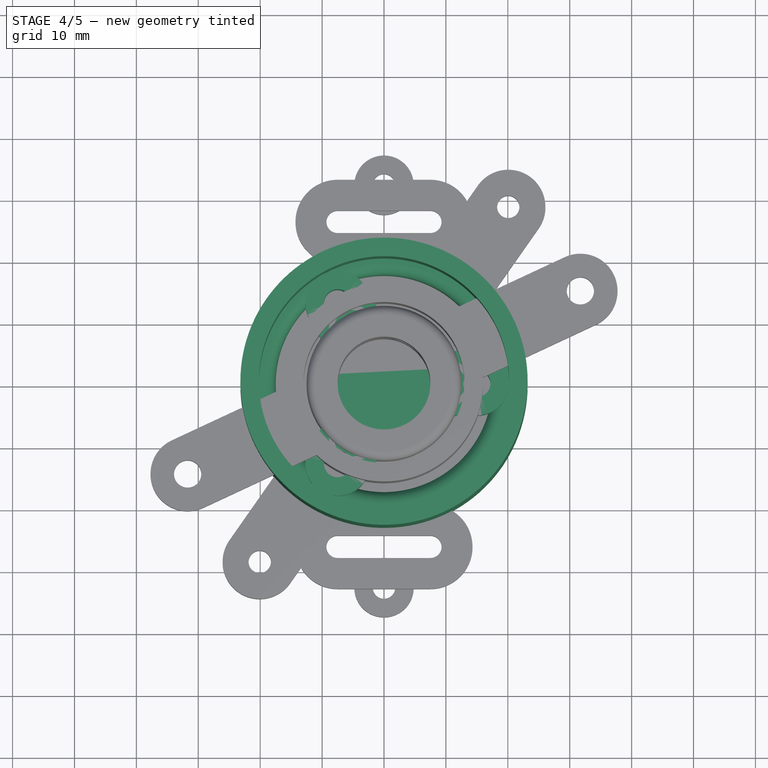
[diagram: stage 4 of 5 — top view after this stage's code; geometry added in this stage tinted green]
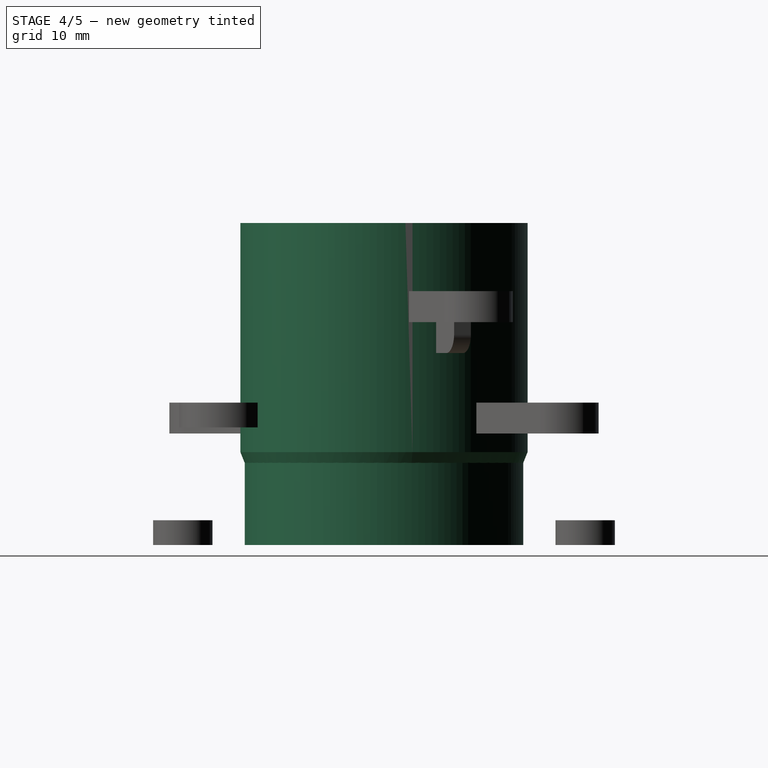
[diagram: stage 4 of 5 — right view after this stage's code; geometry added in this stage tinted green]
FEATURE [Part::Cylinder] Cylinder  label="thread cylinder"
  Angle = 360
  AttacherType = Attacher::AttachEngine3D
  Height = 10
  Radius = 11.6
  expr: Radius = <<p>>.thread_r - <<p>>.thread_gap
  expr: Height = <<p>>.thread_cylinder_h
FEATURE [PartDesign::ShapeBinder] ShapeBinder
  Support = -> [Cut]
  TraceSupport = false
FEATURE [PartDesign::Body] Body  label="top body"
  Group = -> [ShapeBinder,Sketch,Revolution]
  Origin = -> Origin001
  Tip = -> Revolution
FEATURE [App::Part] Part  label="top body part"
  Group = -> [Body,Cut]
  Origin = -> Origin
FEATURE [Part::Cut] Cut003  label="plug holed cylinder"
  Base = -> Cylinder007
  Tool = -> Cylinder006
FEATURE [Part::Fillet] Fillet001  label="plug holed cylinder fillet"
  Base = -> Cut003
  Edges = 2 edges r=2: [Edge4,Edge5]
FEATURE [App::Part] Part001  label="camera holder part"
  Group = -> [Cut002]
  Origin = -> Origin002
  Placement = pos=(0,0,28) rot=(0,0,-1;5.49779rad)
FEATURE [Part::Cylinder] Cylinder010  label="top attachment disk"
  Angle = 360
  AttacherType = Attacher::AttachEngine3D
  Height = 5
  Radius = 19.2
  expr: Height = <<p>>.top_attachment_disk_h
  expr: Radius = <<p>>.top_attachment_disk_r
FEATURE [Part::Cylinder] Cylinder011  label="top attachment bolt hole"
  Angle = 360
  AttacherType = Attacher::AttachEngine3D
  Height = 30
  Radius = 1.8
  expr: Radius = <<p>>.bolt_hole_r
FEATURE [Part::Cylinder] Cylinder012  label="top attachment disk hole"
  Angle = 360
  AttacherType = Attacher::AttachEngine3D
  Height = 5
  Radius = 11.5
  expr: Radius = <<p>>.top_attachment_hole_r
  expr: Height = <<p>>.top_attachment_disk_h
FEATURE [Part::Cylinder] Cylinder013  label="top attachment bolt head hole"
  Angle = 360
  AttacherType = Attacher::AttachEngine3D
  Height = 30
  Placement = pos=(0,0,2) rot=(0,0,1;0rad)
  Radius = 3
  expr: .Placement.Base.z = <<p>>.top_attachment_disk_h - <<p>>.bolt_head_h
  expr: Radius = <<p>>.bolt_head_r
FEATURE [Part::MultiFuse] Fusion008  label="bolt hole fusion001"
  Shapes = -> [Cylinder011,Cylinder013]
FEATURE [Part::FeaturePython] Array006  label="top attachment bolt hole array"  # Draft array (typed FeaturePython)
  Angle = 360
  ArrayType = 2
  Axis = (0,0,1)
  Base = -> Fusion008
  Center = (0,0,0)
  Count = 4
  ExpandArray = false
  Fuse = false
  IntervalAxis = (0,0,0)
  IntervalX = (50,0,0)
  IntervalY = (0,50,0)
  IntervalZ = (0,0,50)
  NumberCircles = 2
  NumberPolar = 5
  NumberX = 2
  NumberY = 2
  NumberZ = 1
  PlacementList = 4 placements: [(0,0,0),(-15.35,0,0),(7.675,-13.2935,0),(7.675,13.2935,0)]
  RadialDistance = 15.35
  ScaleList = (4) [(1,1,1),(1,1,1),(1,1,1),(1,1,1)]
  Symmetry = 1
  TangentialDistance = 30
  expr: RadialDistance = <<p>>.top_attachment_hole_r + (<<p>>.top_attachment_disk_r - <<p>>.top_attachment_hole_r) / 2
FEATURE [Part::Cone] Cone
  Angle = 360
  AttacherType = Attacher::AttachEngine3D
  Height = 10
  Placement = pos=(0,0,5) rot=(0,0,1;0rad)
  Radius1 = 19.2
  Radius2 = 23.2
  expr: Height = <<p>>.top_attachment_expanding_h
  expr: Radius2 = <<p>>.top_attachment_expanding_r
  expr: Radius1 = <<p>>.top_attachment_disk_r
  expr: .Placement.Base.z = <<p>>.top_attachment_disk_h
FEATURE [Part::Cone] Cone001
  Angle = 360
  AttacherType = Attacher::AttachEngine3D
  Height = 10
  Placement = pos=(0,0,5) rot=(0,0,1;0rad)
  Radius1 = 16.2
  Radius2 = 20.2
  expr: .Placement.Base.z = <<p>>.top_attachment_disk_h
  expr: Radius1 = <<p>>.top_attachment_disk_r - <<p>>.top_block_wall
  expr: Radius2 = <<p>>.top_attachment_expanding_r - <<p>>.top_block_wall
  expr: Height = <<p>>.top_attachment_expanding_h
FEATURE [Part::Cylinder] Cylinder014  label="Cylinder"
  Angle = 360
  AttacherType = Attacher::AttachEngine3D
  Height = 37
  Placement = pos=(0,0,15) rot=(0,0,1;0rad)
  Radius = 23.2
  expr: .Placement.Base.z = <<p>>.top_attachment_disk_h + <<p>>.top_attachment_expanding_h
  expr: Height = <<p>>.top_block_h - <<p>>.top_attachment_expanding_h
  expr: Radius = <<p>>.top_attachment_expanding_r
FEATURE [Part::MultiFuse] Fusion009
  Shapes = -> [Cone,Cylinder010,Cylinder014]
FEATURE [Part::Cylinder] Cylinder015
  Angle = 360
  AttacherType = Attacher::AttachEngine3D
  Height = 37
  Placement = pos=(0,0,15) rot=(0,0,1;0rad)
  Radius = 20.2
  expr: .Placement.Base.z = <<p>>.top_attachment_disk_h + <<p>>.top_attachment_expanding_h
  expr: Radius = <<p>>.top_attachment_expanding_r - <<p>>.top_block_wall
  expr: Height = <<p>>.top_block_h - <<p>>.top_attachment_expanding_h
FEATURE [Part::MultiFuse] Fusion007  label="top attachment hole fusion"
  Shapes = -> [Array006,Cylinder012,Cone001,Cylinder015]
FEATURE [Part::Cut] Cut004  label="top attachment disk cut"
  Base = -> Fusion009
  Tool = -> Fusion007
FEATURE [Part::Cylinder] Cylinder018  label="top attachment bolt hole001"
  Angle = 360
  AttacherType = Attacher::AttachEngine3D
  Height = 30
  Radius = 1.8
  expr: Radius = <<p>>.bolt_hole_r
FEATURE [Part::Cylinder] Cylinder019  label="top attachment disk001"
  Angle = 360
  AttacherType = Attacher::AttachEngine3D
  Height = 5
  Radius = 19.2
  expr: Radius = <<p>>.top_attachment_disk_r
  expr: Height = <<p>>.top_attachment_disk_h
FEATURE [Part::Cylinder] Cylinder021  label="top attachment bolt head hole001"
  Angle = 360
  AttacherType = Attacher::AttachEngine3D
  Height = 30
  Placement = pos=(0,0,2) rot=(0,0,1;0rad)
  Radius = 3
  expr: Radius = <<p>>.bolt_head_r
  expr: .Placement.Base.z = <<p>>.top_attachment_disk_h - <<p>>.bolt_head_h
FEATURE [Part::MultiFuse] Fusion011  label="bolt hole fusion002"
  Shapes = -> [Cylinder018,Cylinder021]
FEATURE [Part::FeaturePython] Array007  label="top attachment bolt hole array001"  # Draft array (typed FeaturePython)
  Angle = 360
  ArrayType = 2
  Axis = (0,0,1)
  Base = -> Fusion011
  Center = (0,0,0)
  Count = 4
  ExpandArray = false
  Fuse = false
  IntervalAxis = (0,0,0)
  IntervalX = (50,0,0)
  IntervalY = (0,50,0)
  IntervalZ = (0,0,50)
  NumberCircles = 2
  NumberPolar = 5
  NumberX = 2
  NumberY = 2
  NumberZ = 1
  PlacementList = 4 placements: [(0,0,0),(-15.65,0,0),(7.825,-13.5533,0),(7.825,13.5533,0)]
  RadialDistance = 15.65
  ScaleList = (4) [(1,1,1),(1,1,1),(1,1,1),(1,1,1)]
  Symmetry = 1
  TangentialDistance = 30
  expr: RadialDistance = <<p>>.top_attachment_hole_r + (<<p>>.top_attachment_disk_r - <<p>>.top_attachment_hole_r) / 2 + 0.3mm
FEATURE [PartDesign::Body] Body002  label="ear body clone"
  BaseFeature = -> Cut006
  Group = -> [Clone]
  Origin = -> Origin007
  Placement = pos=(15,0,0) rot=(0,0,1;0rad)
  Tip = -> Clone
FEATURE [Part::FeaturePython] Array008  label="ear body array"  # Draft array (typed FeaturePython)
  Angle = 360
  ArrayType = 1
  Axis = (0,0,1)
  Base = -> Body002
  Center = (0,0,0)
  Count = 3
  ExpandArray = false
  Fuse = false
  IntervalAxis = (0,0,0)
  IntervalX = (50,0,0)
  IntervalY = (0,50,0)
  IntervalZ = (0,0,50)
  NumberCircles = 3
  NumberPolar = 3
  NumberX = 2
  NumberY = 2
  NumberZ = 1
  Placement = pos=(0,0,17) rot=(0,0,1;0rad)
  PlacementList = 3 placements: [(15,0,0),(-7.5,12.9904,0),(-7.5,-12.9904,0)]
  RadialDistance = 50
  ScaleList = (3) [(1,1,1),(1,1,1),(1,1,1)]
  Symmetry = 1
  TangentialDistance = 25
  expr: .Placement.Base.z = <<p>>.top_block_h + <<p>>.top_attachment_disk_h - <<p>>.ear_top_z
FEATURE [Part::MultiFuse] Fusion010  label="top attachment hole fusion001"
  Shapes = -> [Array007,Array009,Cylinder020]
FEATURE [Part::MultiFuse] Fusion012  label="body fusion001"
  Shapes = -> [Cylinder019,Fillet002]
FEATURE [Part::Cut] Cut005  label="top attachment disk cut001"
  Base = -> Fusion012
  Tool = -> Fusion010
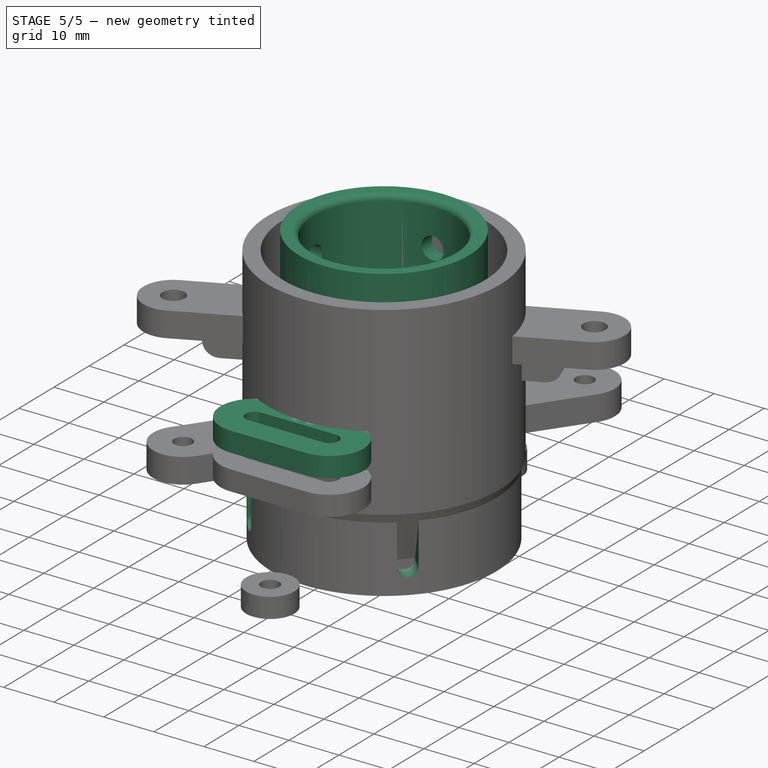
[diagram: stage 5 of 5 — iso view after this stage's code; geometry added in this stage tinted green]
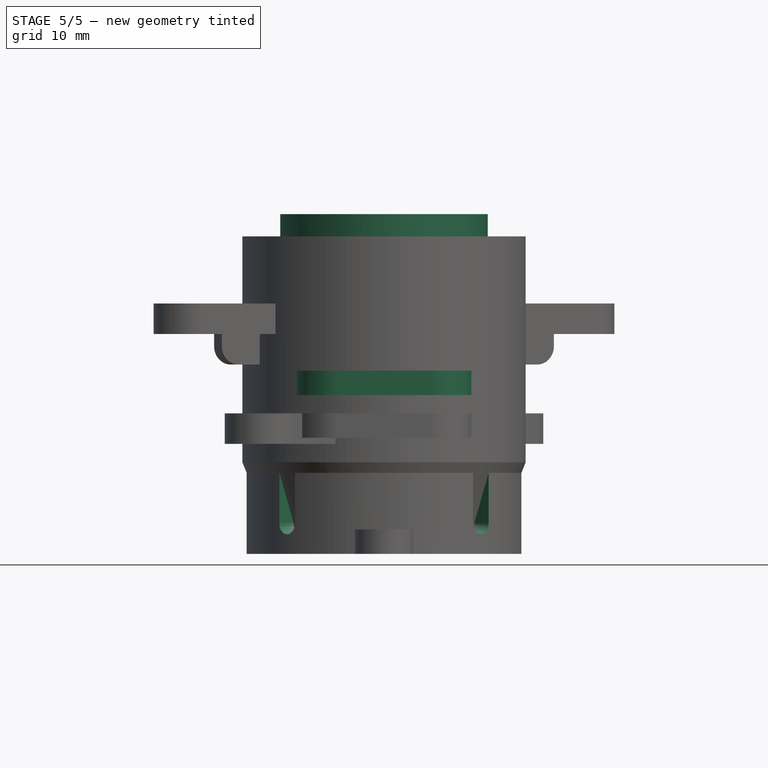
[diagram: stage 5 of 5 — front view after this stage's code; geometry added in this stage tinted green]
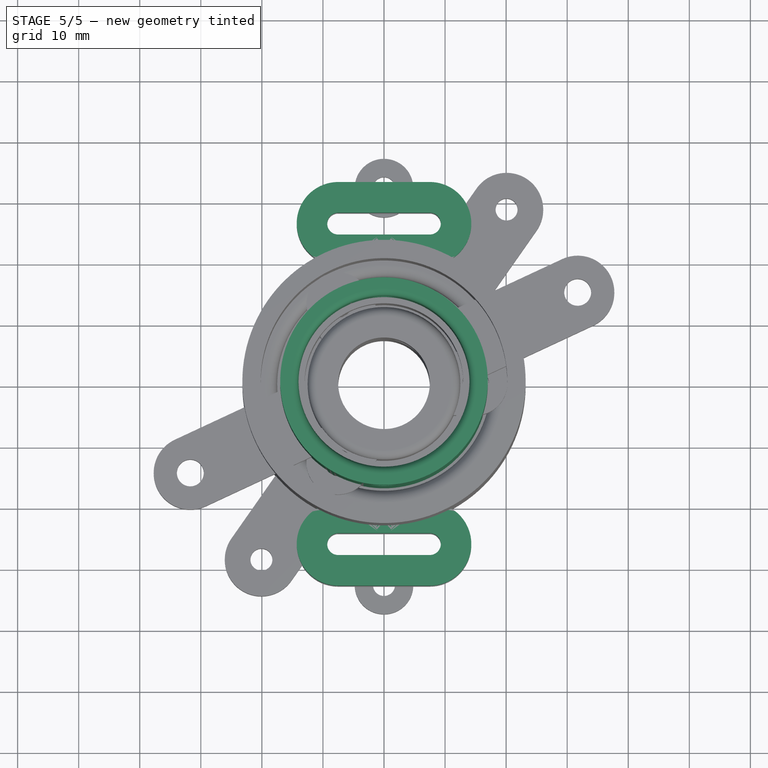
[diagram: stage 5 of 5 — top view after this stage's code; geometry added in this stage tinted green]
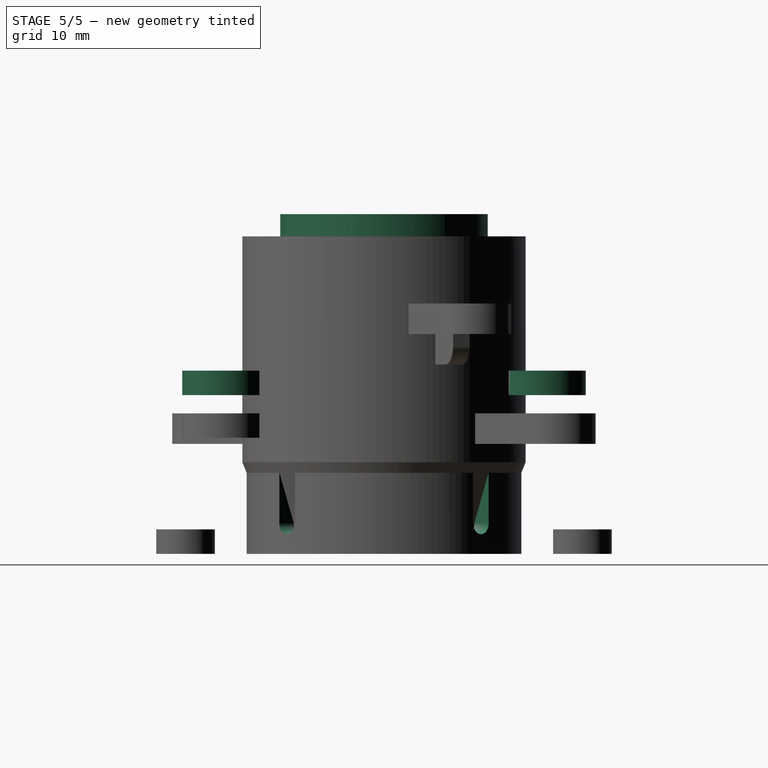
[diagram: stage 5 of 5 — right view after this stage's code; geometry added in this stage tinted green]
FEATURE [Part::Cylinder] Cylinder001  label="thread_cylinder_hole"
  Angle = 360
  AttacherType = Attacher::AttachEngine3D
  Height = 57
  Radius = 9
  expr: Radius = <<p>>.thread_central_hole_r
  expr: Height = <<p>>.thread_cylinder_h + <<p>>.top_block_h
FEATURE [Spreadsheet::Sheet] Spreadsheet  label="p"
  cells = A1=thread_r; B1(thread_r)==12mm; A2=thread_gap; B2(thread_gap)==0.4mm; A3=thread_central_hole_r; B3(thread_central_hole_r)==9mm; A4=thread_cylinder_h; B4(thread_cylinder_h)==10mm; A5=plug_h; B5(plug_h)==30mm; A6=plug_central_hole_r; B6(plug_central_hole_r)==15mm; A7=plug_wall; B7(plug_wall)==5mm; A8=plug_wall_gap; B8(plug_wall_gap)==0.5mm; A9=top_block_h; B9(top_block_h)==47mm; A10=top_block_wall; B10(top_block_wall)==3mm; A11=top_block_bottom_wall; B11(top_block_bottom_wall)==2mm; A12=bolt_hole_r; B12(bolt_hole_r)==1.8mm; A13=insert_hole_r; B13(insert_hole_r)==2.2mm; A14=bolt_hole_size; B14(bolt_hole_size)==15mm; A15=plug_hole_z; B15(plug_hole_z)==5mm; A16=top_block_hole_offset_z; B16(top_block_hole_offset_z)==10mm; A17=camera_attachment_wall; B17(camera_attachment_wall)==5mm; A18=camera_attachment_h; B18(camera_attachment_h)==4mm; A19=top_attachment_disk_r; B19(top_attachment_disk_r)==19.2mm; A20=top_attachment_disk_h; B20(top_attachment_disk_h)==5mm; A21=top_attachment_hole_r; B21(top_attachment_hole_r)==11.5mm; A22=bolt_head_h; B22(bolt_head_h)==3mm; A23=bolt_head_r; B23(bolt_head_r)==3mm; A24=top_attachment_expanding_h; B24(top_attachment_expanding_h)==10mm; A25=top_attachment_expanding_r; B25(top_attachment_expanding_r)==top_attachment_disk_r + top_block_wall + 1mm; A26=ear_top_z; B26(ear_top_z)==top_attachment_disk_h + top_block_h - 17mm; A27=top_lower_part_h; B27(top_lower_part_h)==30mm; A28=inserter_wall; B28(inserter_wall)==5mm; A29=inserter_hole_pos; B29(inserter_hole_pos)==13mm; A30=middle_part_h; B30(middle_part_h)==36mm; A31=middle_bolt_hole_size; B31(middle_bolt_hole_size)==10mm; A32=spring_r; B32(spring_r)==5mm; A33=spring_border; B33(spring_border)==1mm; A34=sprint_dist; B34(sprint_dist)==70mm; A35=outer_cylinder_r; B35(outer_cylinder_r)==top_attachment_hole_r + 1mm; A36=zero_holder_h; B36(zero_holder_h)==23mm
FEATURE [Part::Cylinder] Cylinder004  label="hole side"
  Angle = 360
  AttacherType = Attacher::AttachEngine3D
  Height = 10
  Radius = 1.8
  expr: Radius = <<p>>.bolt_hole_r
FEATURE [Part::FeaturePython] Array  label="hole side array"  # Draft array (typed FeaturePython)
  Angle = 360
  ArrayType = 0
  Axis = (0,0,1)
  Base = -> Cylinder004
  Center = (0,0,0)
  Count = 2
  ExpandArray = false
  Fuse = false
  IntervalAxis = (0,0,0)
  IntervalX = (15,0,0)
  IntervalY = (0,100,0)
  IntervalZ = (0,0,100)
  NumberCircles = 3
  NumberPolar = 5
  NumberX = 2
  NumberY = 1
  NumberZ = 1
  PlacementList = 2 placements: [(0,0,0),(15,0,0)]
  RadialDistance = 50
  ScaleList = (2) [(1,1,1),(1,1,1)]
  Symmetry = 1
  TangentialDistance = 25
  expr: .IntervalX.x = <<p>>.bolt_hole_size
FEATURE [Part::Box] Box  label="camera hole central cube"
  AttacherType = Attacher::AttachEngine3D
  Height = 10
  Length = 15
  Placement = pos=(0,-1.8,0) rot=(0,0,1;0rad)
  Width = 3.6
  expr: Length = <<p>>.bolt_hole_size
  expr: Width = <<p>>.bolt_hole_r * 2
  expr: .Placement.Base.y = -<<p>>.bolt_hole_r
FEATURE [Part::MultiFuse] Fusion002  label="bolt hole fusion"
  Placement = pos=(-12.5,0,0) rot=(0,-1,0;1.5708rad)
  Shapes = -> [Array,Box]
  expr: .Placement.Base.x = -<<external cylinder>>.Radius + <<hole side>>.Height
FEATURE [Sketcher::SketchObject] Sketch  label="top block wall sketch"
  FullyConstrained = false
  MapMode = 5
  Placement = pos=(0,0,0) rot=(0.57735,0.57735,0.57735;2.0944rad)
  Support = -> [YZ_Plane001]
  expr: Constraints[6] = <<p>>.thread_central_hole_r
  expr: Constraints[3] = <<p>>.top_block_bottom_wall
  expr: Constraints[8] = <<p>>.thread_cylinder_h
  expr: Constraints[13] = <<p>>.thread_r
  expr: Constraints[20] = <<p>>.top_block_wall
  sketch-geometry (9):
    g0: LineSegment StartX=0 StartY=10 StartZ=0 EndX=12 EndY=10 EndZ=0
    g1: LineSegment StartX=17 StartY=15 StartZ=0 EndX=17 EndY=55.6253 EndZ=0
    g2: LineSegment StartX=17 StartY=55.6253 StartZ=0 EndX=15.1981 EndY=55.6253 EndZ=0
    g3: LineSegment StartX=0 StartY=10 StartZ=0 EndX=0 EndY=12 EndZ=0
    g4: LineSegment StartX=0 StartY=12 StartZ=0 EndX=9 EndY=12 EndZ=0
    g5: LineSegment StartX=14 StartY=54.4272 StartZ=0 EndX=14 EndY=17 EndZ=0
    g6: ArcOfCircle CenterX=9 CenterY=17 CenterZ=0 NormalX=0 NormalY=0 NormalZ=1 AngleXU=0 Radius=5 StartAngle=4.71239 EndAngle=6.28319
    g7: ArcOfCircle CenterX=12 CenterY=15 CenterZ=0 NormalX=0 NormalY=0 NormalZ=1 AngleXU=0 Radius=5 StartAngle=4.71239 EndAngle=6.28319
    g8: ArcOfCircle CenterX=15.1981 CenterY=54.4272 CenterZ=0 NormalX=0 NormalY=0 NormalZ=1 AngleXU=0 Radius=1.19813 StartAngle=1.5708 EndAngle=3.14159
  constraints (22):
    c: PointOnObject(g0,g-2)
    c: Horizontal(g0)
    c: Vertical(g3)
    c: DistanceY(g3,g3) = 2
    c: Coincident(g4,g3)
    c: Horizontal(g4)
    c: DistanceX(g4,g4) = 9
    c: Coincident(g3,g0)
    c: DistanceY(g-1,g0) = 10
    c: Vertical(g5)
    c: Coincident(g2,g1)
    c: Horizontal(g2)
    c: Vertical(g1)
    c: DistanceX(g0,g0) = 12
    c: Tangent(g6,g5) = 1.5708
    c: Tangent(g6,g4) = -1.5708
    c: Tangent(g7,g1) = -1.5708
    c: Tangent(g7,g0) = -1.5708
    c: Tangent(g2,g8) = -1.5708
    c: Tangent(g5,g8) = -1.5708
    c: DistanceX(g5,g1) = 3
    c: DistanceX(g-1,g1) = 17  'external_top_part_r'
FEATURE [PartDesign::Revolution] Revolution  label="top block revolution"
  Angle = 360
  Axis = (-2e-16,3e-16,1)
  Base = (0,0,0)
  Placement = pos=(0,0,0) rot=(0.57735,0.57735,0.57735;2.0944rad)
  Profile = -> Sketch
  ReferenceAxis = -> Sketch [V_Axis]
  Reversed = true
FEATURE [Part::Cylinder] Cylinder005  label="insert hole"
  Angle = 360
  AttacherType = Attacher::AttachEngine3D
  Height = 10
  Placement = pos=(-12,0,0) rot=(0,-1,0;1.5708rad)
  Radius = 2.2
  expr: Radius = <<p>>.insert_hole_r
  expr: .Placement.Base.x = -<<top block wall sketch>>.Constraints.external_top_part_r + Height / 2
FEATURE [Part::FeaturePython] Array001  label="insert hole polar array"  # Draft array (typed FeaturePython)
  Angle = 360
  ArrayType = 1
  Axis = (0,0,1)
  Base = -> Cylinder005
  Center = (0,0,0)
  Count = 4
  ExpandArray = false
  Fuse = false
  IntervalAxis = (0,0,0)
  IntervalX = (50,0,0)
  IntervalY = (0,50,0)
  IntervalZ = (0,0,50)
  NumberCircles = 3
  NumberPolar = 4
  NumberX = 2
  NumberY = 2
  NumberZ = 1
  Placement = pos=(0,0,47) rot=(0,0,1;0rad)
  PlacementList = 4 placements: [(-12,0,0),(-3.55271e-15,-12,0),(12,-1.46958e-15,0),(3.55271e-15,12,0)]
  RadialDistance = 50
  ScaleList = (4) [(1,1,1),(1,1,1),(1,1,1),(1,1,1)]
  Symmetry = 1
  TangentialDistance = 25
  expr: .Placement.Base.z = <<p>>.thread_cylinder_h + <<p>>.top_block_h - <<p>>.top_block_hole_offset_z
FEATURE [Part::MultiFuse] Fusion001  label="extraction fusion"
  Shapes = -> [Cylinder001,Array001]
FEATURE [Part::FeaturePython] Array002  label="bolt hole polar array"  # Draft array (typed FeaturePython)
  Angle = 360
  ArrayType = 1
  Axis = (0,0,1)
  Base = -> Fusion002
  Center = (0,0,0)
  Count = 4
  ExpandArray = false
  Fuse = false
  IntervalAxis = (0,0,0)
  IntervalX = (50,0,0)
  IntervalY = (0,50,0)
  IntervalZ = (0,0,50)
  NumberCircles = 3
  NumberPolar = 4
  NumberX = 2
  NumberY = 2
  NumberZ = 1
  Placement = pos=(0,0,5) rot=(0,0,1;0.785398rad)
  PlacementList = 4 placements: [(-12.5,0,0),(-3.55271e-15,-12.5,0),(12.5,-1.53081e-15,0),(3.55271e-15,12.5,0)]
  RadialDistance = 50
  ScaleList = (4) [(1,1,1),(1,1,1),(1,1,1),(1,1,1)]
  Symmetry = 1
  TangentialDistance = 25
  expr: .Placement.Base.z = <<p>>.plug_hole_z
FEATURE [Part::MultiFuse] Fusion003  label="plug extract fusion"
  Shapes = -> [Array002,Cylinder006]
FEATURE [Part::Feature] MicroscopeAdapterRPiV3Bracket001
  shape: bbox 55 x 48.81 x 22 mm, 1292 faces, 0 solids (baked)
FEATURE [Part::Refine] MicroscopeAdapterRPiV3Bracket001001
  Placement = pos=(0,0,-12) rot=(0,0,1;0rad)
  Source = -> MicroscopeAdapterRPiV3Bracket001
FEATURE [Part::Cylinder] Cylinder008  label="camera attachment hole"
  Angle = 360
  AttacherType = Attacher::AttachEngine3D
  Height = 10
  Radius = 1.8
  expr: Radius = <<p>>.bolt_hole_r
FEATURE [Part::FeaturePython] Array003  label="camera hole array"  # Draft array (typed FeaturePython)
  Angle = 360
  ArrayType = 0
  Axis = (0,0,1)
  Base = -> Cylinder008
  Center = (0,0,0)
  Count = 2
  ExpandArray = false
  Fuse = false
  IntervalAxis = (0,0,0)
  IntervalX = (15,0,0)
  IntervalY = (0,100,0)
  IntervalZ = (0,0,100)
  NumberCircles = 3
  NumberPolar = 5
  NumberX = 2
  NumberY = 1
  NumberZ = 1
  PlacementList = 2 placements: [(0,0,0),(15,0,0)]
  RadialDistance = 50
  ScaleList = (2) [(1,1,1),(1,1,1)]
  Symmetry = 1
  TangentialDistance = 25
  expr: .IntervalX.x = <<p>>.bolt_hole_size
FEATURE [Part::MultiFuse] Fusion004  label="camera attachment hole fusion"
  Shapes = -> [Array003,Box]
FEATURE [Part::Box] Box001  label="camera attachment cube"
  AttacherType = Attacher::AttachEngine3D
  Height = 4
  Length = 15
  Placement = pos=(0,-6.8,0) rot=(0,0,1;0rad)
  Width = 13.6
  expr: .Placement.Base.y = -Width / 2
  expr: Width = (<<p>>.bolt_hole_r + +<<p>>.camera_attachment_wall) * 2
  expr: Length = <<p>>.bolt_hole_size
  expr: Height = <<p>>.camera_attachment_h
FEATURE [Part::Cylinder] Cylinder009  label="camera attachment"
  Angle = 360
  AttacherType = Attacher::AttachEngine3D
  Height = 4
  Radius = 6.8
  expr: Radius = <<p>>.bolt_hole_r + <<p>>.camera_attachment_wall
  expr: Height = <<p>>.camera_attachment_h
FEATURE [Part::FeaturePython] Array005  label="camera attachment array"  # Draft array (typed FeaturePython)
  Angle = 360
  ArrayType = 0
  Axis = (0,0,1)
  Base = -> Cylinder009
  Center = (0,0,0)
  Count = 2
  ExpandArray = false
  Fuse = false
  IntervalAxis = (0,0,0)
  IntervalX = (15,0,0)
  IntervalY = (0,100,0)
  IntervalZ = (0,0,100)
  NumberCircles = 3
  NumberPolar = 5
  NumberX = 2
  NumberY = 1
  NumberZ = 1
  PlacementList = 2 placements: [(0,0,0),(15,0,0)]
  RadialDistance = 50
  ScaleList = (2) [(1,1,1),(1,1,1)]
  Symmetry = 1
  TangentialDistance = 25
  expr: .IntervalX.x = <<p>>.bolt_hole_size
FEATURE [Part::MultiFuse] Fusion005  label="camera attachment fusion"
  Shapes = -> [Array005,Box001]
FEATURE [Part::Cut] Cut001  label="camera attachment cut"
  Base = -> Fusion005
  Tool = -> Fusion004
FEATURE [Part::FeaturePython] Array004  label="camera attachment hole array"  # Draft array (typed FeaturePython)
  Angle = 360
  ArrayType = 0
  Axis = (0,0,1)
  Base = -> Cut001
  Center = (0,0,0)
  Count = 2
  ExpandArray = false
  Fuse = false
  IntervalAxis = (0,0,0)
  IntervalX = (100,0,0)
  IntervalY = (0,52.5,0)
  IntervalZ = (0,0,100)
  NumberCircles = 3
  NumberPolar = 5
  NumberX = 1
  NumberY = 2
  NumberZ = 1
  Placement = pos=(-7.5,-26.25,26) rot=(0,0,1;0rad)
  PlacementList = 2 placements: [(0,0,0),(0,52.5,0)]
  RadialDistance = 50
  ScaleList = (2) [(1,1,1),(1,1,1)]
  Symmetry = 1
  TangentialDistance = 25
  expr: .IntervalY.y = (<<external cylinder>>.Radius + <<p>>.plug_wall) * 2 - <<p>>.camera_attachment_wall / 2
  expr: .Placement.Base.x = -<<p>>.bolt_hole_size / 2
  expr: .Placement.Base.y = -.IntervalY.y / 2
  expr: .Placement.Base.z = <<p>>.plug_h - <<p>>.camera_attachment_h
FEATURE [Part::Fillet] Fillet  label="thread cylinder fillet"
  Base = -> Cylinder
  Edges = 1 edges r=2: [Edge3]
FEATURE [Part::MultiFuse] Fusion  label="body fusion"
  Shapes = -> [Revolution,Fillet]
FEATURE [Part::Cut] Cut  label="body cut"
  Base = -> Fusion
  Tool = -> Fusion001
FEATURE [Part::MultiFuse] Fusion006  label="camera attachment fusion001"
  Shapes = -> [Array004,Fillet001]
FEATURE [Part::Cut] Cut002  label="plug cut"
  Base = -> Fusion006
  Tool = -> Fusion003
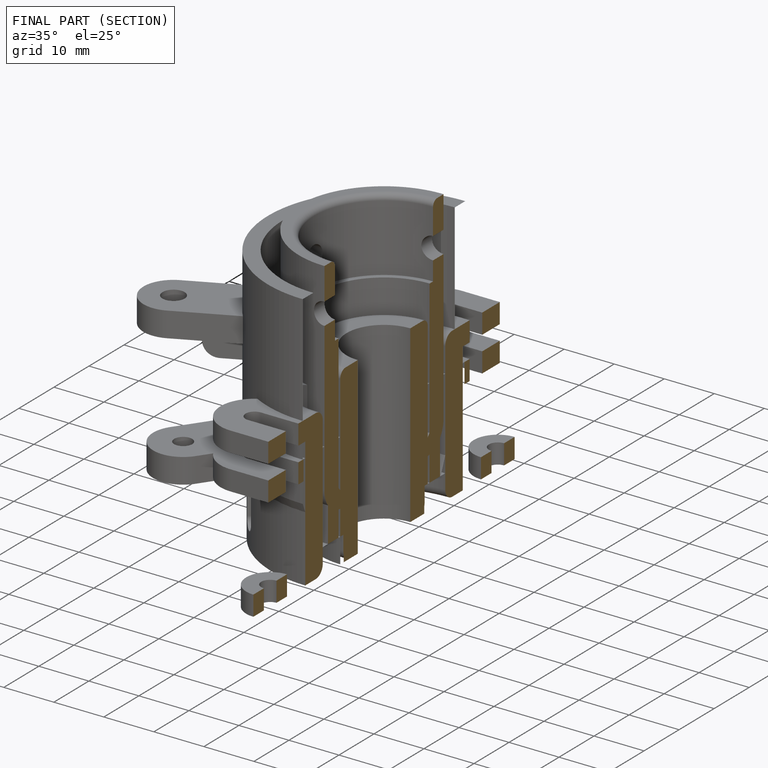
[diagram: finished part — half-section view (interior)]
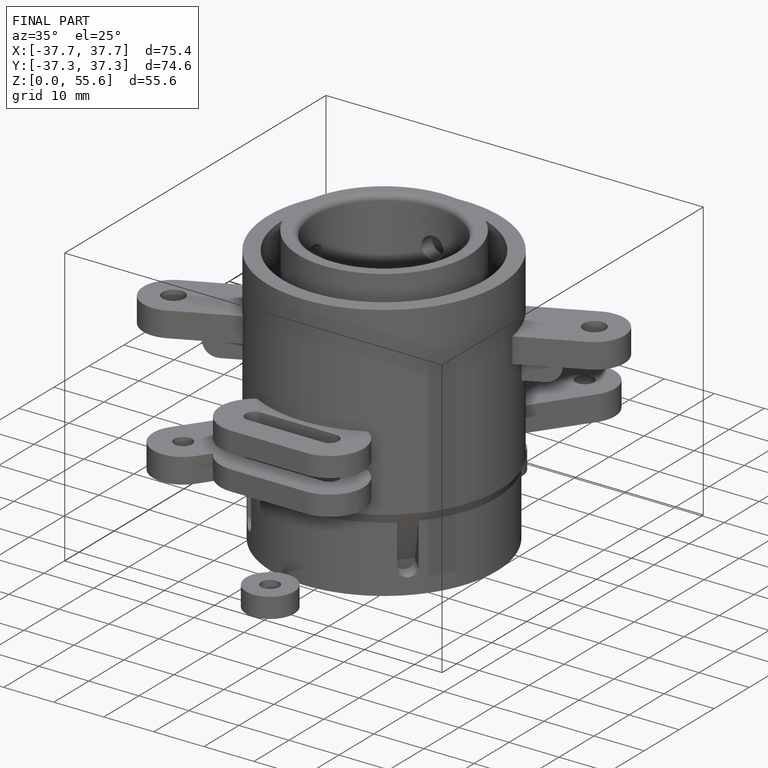
[diagram: finished part — iso view with bounding-box wireframe]
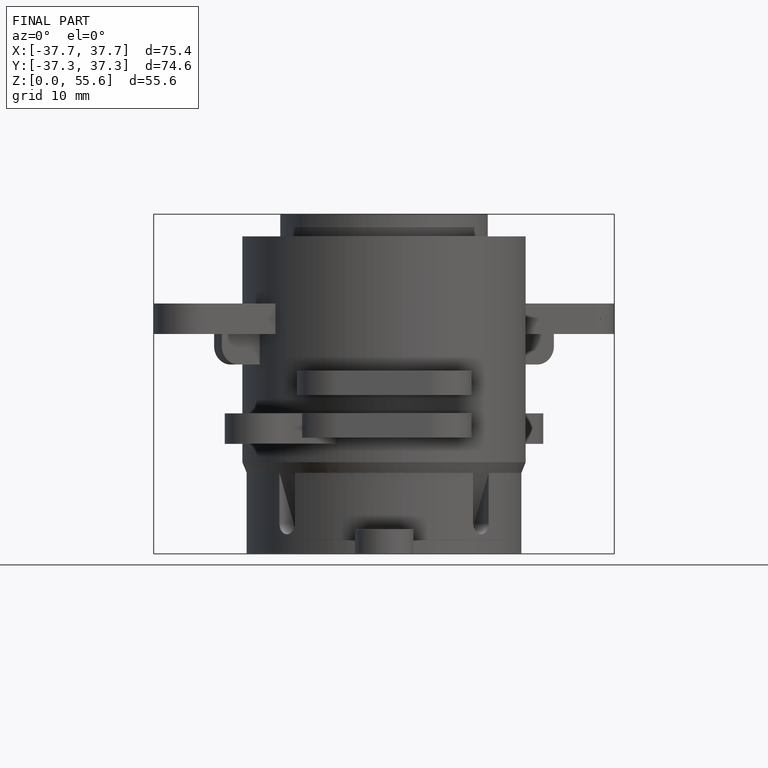
[diagram: finished part — front view with bounding-box wireframe]
